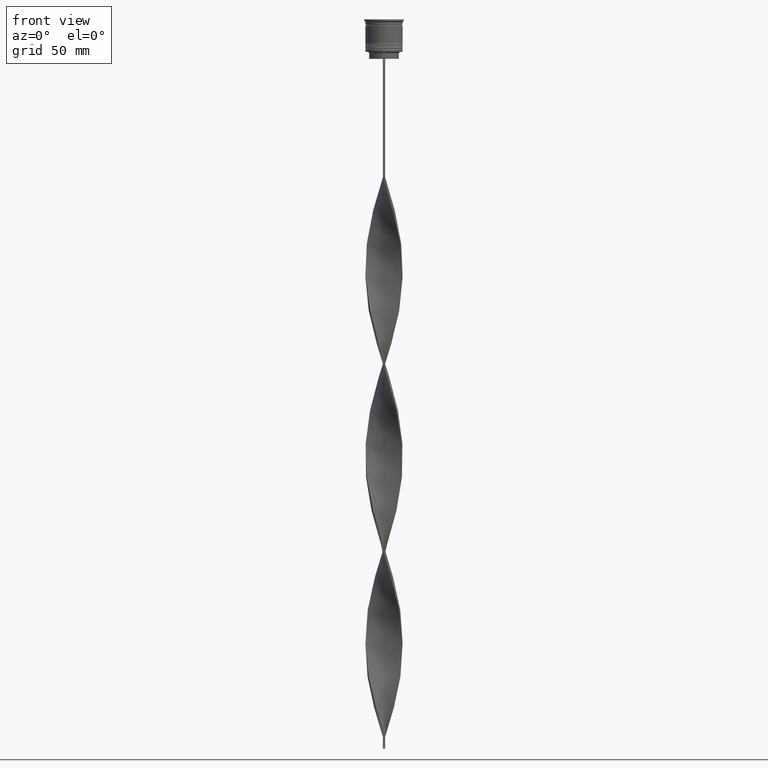
[diagram: clean part render]
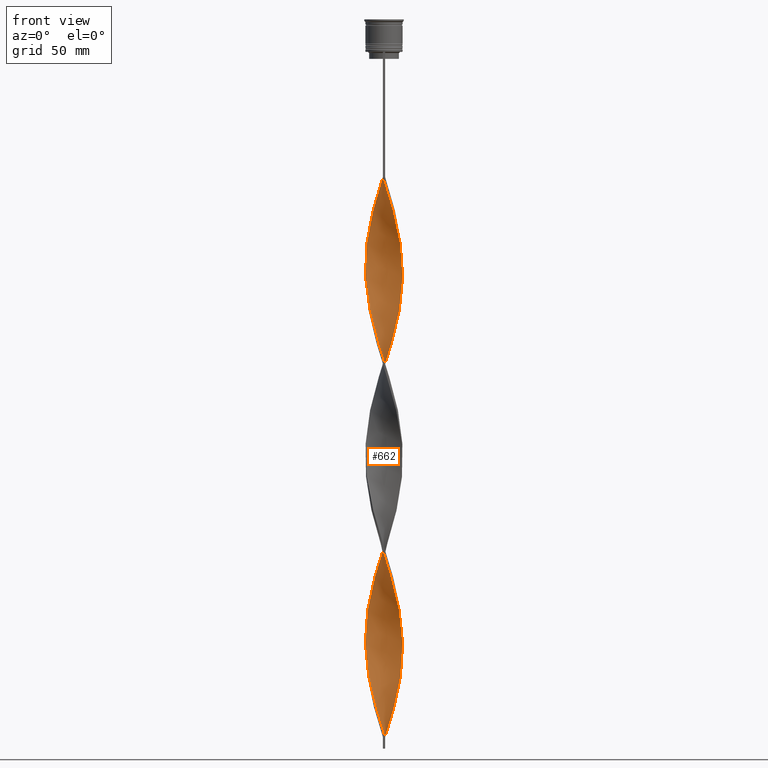
[diagram: same view with one face highlighted and labeled with its STEP entity id]
A machine part, front view. The second image highlights one B-rep face of the part: STEP entity #662.
In plain terms, the highlighted face is a freeform B-spline surface patch.
Its self-contained STEP definition (entity closure, byte-faithful):
#29 = CARTESIAN_POINT ( 'NONE',  ( -1.385649445451608841, 7.920097061150129569, -154.3583333333333201 ) ) ;
#31 = CARTESIAN_POINT ( 'NONE',  ( -7.999999999999996447, -0.4999999999999993339, -268.8333333333333712 ) ) ;
#51 = CARTESIAN_POINT ( 'NONE',  ( 6.901056943637172481, -4.077427260010559884, -96.11666666666667425 ) ) ;
#72 = CARTESIAN_POINT ( 'NONE',  ( 0.5000000000000008882, 8.000000000000003553, -309.0000000000000000 ) ) ;
#76 = CARTESIAN_POINT ( 'NONE',  ( -7.605824193947281486, -2.607565948252400290, -198.5416666666666856 ) ) ;
#90 = VERTEX_POINT ( 'NONE', #3986 ) ;
#96 = CARTESIAN_POINT ( 'NONE',  ( -7.823289492240988352, 1.745319890619417613, -184.4833333333333201 ) ) ;
#118 = CARTESIAN_POINT ( 'NONE',  ( 4.830271518912642392, -6.427786469485481824, -86.07500000000003126 ) ) ;
#119 = CARTESIAN_POINT ( 'NONE',  ( 7.920097061150129569, 1.385649445451609285, -114.1916666666666771 ) ) ;
#131 = CARTESIAN_POINT ( 'NONE',  ( 5.106790515527261931, 6.178243328853344707, -292.9333333333333371 ) ) ;
#146 = CARTESIAN_POINT ( 'NONE',  ( -1.129613654596947514, 7.960649146587686964, -230.6750000000000114 ) ) ;
#153 = CARTESIAN_POINT ( 'NONE',  ( 7.605824193947281486, 2.607565948252398069, -278.8750000000000000 ) ) ;
#156 = CARTESIAN_POINT ( 'NONE',  ( -0.4999999999999998890, -8.000000000000003553, -68.00000000000000000 ) ) ;
#160 = CARTESIAN_POINT ( 'NONE',  ( 5.106790515527261931, 6.178243328853344707, -292.9333333333333371 ) ) ;
#172 = CARTESIAN_POINT ( 'NONE',  ( 2.361026126641885714, 7.685929837894286187, -302.9750000000000227 ) ) ;
#180 = CARTESIAN_POINT ( 'NONE',  ( 6.010407640085657199, 5.303300858899108405, -288.9166666666666856 ) ) ;
#184 = CARTESIAN_POINT ( 'NONE',  ( 4.297773521152310927, 6.766028581145813625, -212.6000000000000227 ) ) ;
#193 = CARTESIAN_POINT ( 'NONE',  ( 0.5000000000000008882, 8.000000000000003553, -309.0000000000000000 ) ) ;
#196 = VERTEX_POINT ( 'NONE', #3040 ) ;
#202 = CARTESIAN_POINT ( 'NONE',  ( -7.920097061150128681, -1.385649445451604844, -194.5250000000000341 ) ) ;
#205 = CARTESIAN_POINT ( 'NONE',  ( 8.000000000000003553, -0.5000000000000004441, -268.8333333333333712 ) ) ;
#207 = CARTESIAN_POINT ( 'NONE',  ( 0.7576315500242793988, 7.979723957281213309, -224.6500000000000057 ) ) ;
#214 = CARTESIAN_POINT ( 'NONE',  ( 6.427786469485482712, 4.830271518912642392, -286.9083333333334167 ) ) ;
#220 = CARTESIAN_POINT ( 'NONE',  ( -5.303300858899108405, 6.010407640085658088, -168.4166666666666572 ) ) ;
#222 = CARTESIAN_POINT ( 'NONE',  ( 7.453943633173757632, -2.947664213147156875, -260.8000000000000114 ) ) ;
#226 = CARTESIAN_POINT ( 'NONE',  ( -2.361026126641883049, 7.685929837894279082, -234.6916666666666629 ) ) ;
#231 = CARTESIAN_POINT ( 'NONE',  ( -6.178243328853340266, -5.106790515527256602, -124.2333333333333343 ) ) ;
#239 = CARTESIAN_POINT ( 'NONE',  ( 4.830271518912643280, -6.427786469485482712, -86.07500000000003126 ) ) ;
#245 = CARTESIAN_POINT ( 'NONE',  ( 4.077427260010555443, -6.901056943637167151, -160.3833333333333258 ) ) ;
#250 = CARTESIAN_POINT ( 'NONE',  ( 7.605824193947272605, -2.607565948252400290, -178.4583333333333144 ) ) ;
#253 = CARTESIAN_POINT ( 'NONE',  ( -0.4999999999999998890, -8.000000000000003553, -68.00000000000000000 ) ) ;
#257 = CARTESIAN_POINT ( 'NONE',  ( -6.427786469485477383, 4.830271518912638840, -250.7583333333333258 ) ) ;
#260 = CARTESIAN_POINT ( 'NONE',  ( 0.7576315500242786216, -7.979723957281222191, -72.01666666666667993 ) ) ;
#270 = CARTESIAN_POINT ( 'NONE',  ( 7.920097061150122464, -1.385649445451605954, -182.4749999999999943 ) ) ;
#276 = CARTESIAN_POINT ( 'NONE',  ( 7.960649146587686964, 1.129613654596949734, -190.5083333333333826 ) ) ;
#283 = CARTESIAN_POINT ( 'NONE',  ( -4.830271518912642392, 6.427786469485483600, -166.4083333333333599 ) ) ;
#296 = CARTESIAN_POINT ( 'NONE',  ( -5.106790515527257490, 6.178243328853340266, -84.06666666666667709 ) ) ;
#301 = CARTESIAN_POINT ( 'NONE',  ( -2.607565948252396737, -7.605824193947274381, -298.9583333333334281 ) ) ;
#308 = CARTESIAN_POINT ( 'NONE',  ( -0.7576315500242785106, -7.979723957281213309, -304.9833333333333485 ) ) ;
#313 = CARTESIAN_POINT ( 'NONE',  ( 8.039350853412310371, -0.1296136545969525100, -186.4916666666667027 ) ) ;
#316 = LINE ( 'NONE', #253, #4107 ) ;
#320 = CARTESIAN_POINT ( 'NONE',  ( -2.947664213147154655, 7.453943633173751415, -236.6999999999999886 ) ) ;
#328 = CARTESIAN_POINT ( 'NONE',  ( -2.947664213147154655, 7.453943633173751415, -236.6999999999999886 ) ) ;
#336 = CARTESIAN_POINT ( 'NONE',  ( -8.039350853412308595, 0.1296136545969479303, -106.1583333333333456 ) ) ;
#338 = CARTESIAN_POINT ( 'NONE',  ( -4.297773521152310039, -6.766028581145813625, -292.9333333333333371 ) ) ;
#345 = CARTESIAN_POINT ( 'NONE',  ( -5.303300858899104853, -6.010407640085650982, -288.9166666666666856 ) ) ;
#347 =( BOUNDED_CURVE ( )  B_SPLINE_CURVE ( 2, ( #3273, #1093, #3908, #431, #2955, #1055, #3827, #1699, #1386, #3628, #640, #2051, #474, #1744, #3000, #1417, #1113, #1911, #3176, #336, #570, #4046, #1150, #2438, #2460, #1435, #552, #1780, #1816, #2768, #1520, #1836, #1494, #1476, #3099, #3411, #2748, #3391, #2417, #491, #3712, #1192, #3732, #2123, #3077, #801, #245, #3336, #836, #859, #2400, #3685, #508, #877, #3038, #2103, #2144, #270, #818, #3371, #2790, #534, #4018, #2713, #1800, #4064, #1210, #1760, #1169, #3017, #3652, #2070, #184, #3985, #3353, #1135, #2085, #3670, #207, #1456, #2730, #4000, #3059, #226, #328, #987, #2892, #1924, #1559, #3526, #1946, #613, #3501, #3165, #3753, #652, #1861, #2503, #2853, #3820, #31, #2255, #1230, #3481, #3208, #3143, #2810, #4108, #3187, #3462, #345, #2870, #676, #1274, #3781, #1880, #4085, #1603, #308, #962, #2226 ),
 .UNSPECIFIED., .F., .T. ) 
 B_SPLINE_CURVE_WITH_KNOTS ( ( 3, 2, 2, 2, 2, 2, 2, 2, 2, 2, 2, 2, 2, 2, 2, 2, 2, 2, 2, 2, 2, 2, 2, 2, 2, 2, 2, 2, 2, 2, 2, 2, 2, 2, 2, 2, 2, 2, 2, 2, 2, 2, 2, 2, 2, 2, 2, 2, 2, 2, 2, 2, 2, 2, 2, 2, 2, 2, 2, 2, 3 ),
 ( 0.000000000000000000, 0.01250000000000000243, 0.02500000000000000486, 0.03749999999999999861, 0.05000000000000000971, 0.06250000000000000000, 0.07499999999999999722, 0.08749999999999998057, 0.1000000000000000194, 0.1125000000000000028, 0.1250000000000000000, 0.1375000000000000111, 0.1499999999999999944, 0.1625000000000000056, 0.1749999999999999611, 0.1875000000000000000, 0.2000000000000000389, 0.2124999999999999944, 0.2250000000000000056, 0.2374999999999999611, 0.2500000000000000000, 0.2625000000000000111, 0.2750000000000000222, 0.2874999999999999778, 0.2999999999999999889, 0.3125000000000000000, 0.3250000000000000111, 0.3375000000000000777, 0.3499999999999999223, 0.3624999999999999889, 0.3750000000000000000, 0.3875000000000000111, 0.4000000000000000777, 0.4124999999999999223, 0.4249999999999999889, 0.4375000000000000000, 0.4500000000000000111, 0.4625000000000000777, 0.4749999999999999223, 0.4874999999999999889, 0.5000000000000000000, 0.5124999999999999556, 0.5250000000000000222, 0.5374999999999999778, 0.5500000000000000444, 0.5625000000000000000, 0.5749999999999999556, 0.5875000000000000222, 0.5999999999999999778, 0.6125000000000000444, 0.6250000000000000000, 0.6374999999999999556, 0.6500000000000000222, 0.6624999999999999778, 0.6750000000000001554, 0.6875000000000000000, 0.6999999999999998446, 0.7125000000000000222, 0.7249999999999999778, 0.7375000000000001554, 0.7500000000000000000 ),
 .UNSPECIFIED. ) 
 CURVE ( )  GEOMETRIC_REPRESENTATION_ITEM ( )  RATIONAL_B_SPLINE_CURVE ( ( 1.000000000000000000, 0.9969173337331279638, 1.000000000000000000, 0.9969173337331279638, 1.000000000000000000, 0.9969173337331279638, 1.000000000000000000, 0.9969173337331279638, 1.000000000000000000, 0.9969173337331279638, 1.000000000000000000, 0.9969173337331279638, 1.000000000000000000, 0.9969173337331279638, 1.000000000000000000, 0.9969173337331279638, 1.000000000000000000, 0.9969173337331279638, 1.000000000000000000, 0.9969173337331279638, 1.000000000000000000, 0.9969173337331279638, 1.000000000000000000, 0.9969173337331279638, 1.000000000000000000, 0.9969173337331279638, 1.000000000000000000, 0.9969173337331279638, 1.000000000000000000, 0.9969173337331279638, 1.000000000000000000, 0.9969173337331279638, 1.000000000000000000, 0.9969173337331279638, 1.000000000000000000, 0.9969173337331279638, 1.000000000000000000, 0.9969173337331279638, 1.000000000000000000, 0.9969173337331279638, 1.000000000000000000, 0.9969173337331279638, 1.000000000000000000, 0.9969173337331279638, 1.000000000000000000, 0.9969173337331279638, 1.000000000000000000, 0.9969173337331279638, 1.000000000000000000, 0.9969173337331279638, 1.000000000000000000, 0.9969173337331279638, 1.000000000000000000, 0.9969173337331279638, 1.000000000000000000, 0.9969173337331279638, 1.000000000000000000, 0.9969173337331279638, 1.000000000000000000, 0.9969173337331279638, 1.000000000000000000, 0.9969173337331279638, 1.000000000000000000, 0.9969173337331279638, 1.000000000000000000, 0.9969173337331279638, 1.000000000000000000, 0.9969173337331279638, 1.000000000000000000, 0.9969173337331279638, 1.000000000000000000, 0.9969173337331279638, 1.000000000000000000, 0.9969173337331279638, 1.000000000000000000, 0.9969173337331279638, 1.000000000000000000, 0.9969173337331279638, 1.000000000000000000, 0.9969173337331279638, 1.000000000000000000, 0.9969173337331279638, 1.000000000000000000, 0.9969173337331279638, 1.000000000000000000, 0.9969173337331279638, 1.000000000000000000, 0.9969173337331279638, 1.000000000000000000, 0.9969173337331279638, 1.000000000000000000, 0.9969173337331279638, 1.000000000000000000, 0.9969173337331279638, 1.000000000000000000, 0.9969173337331279638, 1.000000000000000000, 0.9969173337331279638, 1.000000000000000000, 0.9969173337331279638, 1.000000000000000000, 0.9969173337331279638, 1.000000000000000000, 0.9969173337331279638, 1.000000000000000000, 0.9969173337331279638, 1.000000000000000000, 0.9969173337331279638, 1.000000000000000000, 0.9969173337331279638, 1.000000000000000000, 0.9969173337331279638, 1.000000000000000000, 0.9969173337331279638, 1.000000000000000000, 0.9969173337331279638, 1.000000000000000000, 0.9969173337331279638, 1.000000000000000000, 0.9969173337331279638, 1.000000000000000000 ) ) 
 REPRESENTATION_ITEM ( '' )  );
#350 = ORIENTED_EDGE ( 'NONE', *, *, #3998, .T. ) ;
#363 = CARTESIAN_POINT ( 'NONE',  ( -0.1296136545969470699, 8.039350853412313924, -150.3416666666666401 ) ) ;
#383 = CARTESIAN_POINT ( 'NONE',  ( -8.039350853412315701, -0.1296136545969501230, -190.5083333333333542 ) ) ;
#408 = CARTESIAN_POINT ( 'NONE',  ( -6.178243328853344707, 5.106790515527261931, -172.4333333333333371 ) ) ;
#427 = CARTESIAN_POINT ( 'NONE',  ( 0.5000000000000008882, 8.000000000000003553, -148.3333333333333428 ) ) ;
#431 = CARTESIAN_POINT ( 'NONE',  ( -2.361026126641883049, 7.685929837894279082, -74.02500000000000568 ) ) ;
#437 = CARTESIAN_POINT ( 'NONE',  ( 7.104270692806158749, 3.765275523391986123, -282.8916666666667084 ) ) ;
#444 = CARTESIAN_POINT ( 'NONE',  ( 7.979723957281222191, 0.7576315500242781775, -272.8500000000000227 ) ) ;
#457 = CARTESIAN_POINT ( 'NONE',  ( -5.106790515527262819, -6.178243328853344707, -212.6000000000000227 ) ) ;
#469 = CARTESIAN_POINT ( 'NONE',  ( -2.361026126641883049, -7.685929837894287076, -222.6416666666667084 ) ) ;
#474 = CARTESIAN_POINT ( 'NONE',  ( -6.766028581145814513, 4.297773521152309151, -92.09999999999999432 ) ) ;
#478 = CARTESIAN_POINT ( 'NONE',  ( 3.534302299652431145, 7.221957428453231742, -298.9583333333334281 ) ) ;
#486 = CARTESIAN_POINT ( 'NONE',  ( 1.129613654596949068, 7.960649146587693181, -306.9916666666667879 ) ) ;
#491 = CARTESIAN_POINT ( 'NONE',  ( -0.1296136545969484577, -8.039350853412308595, -146.3250000000000171 ) ) ;
#497 = CARTESIAN_POINT ( 'NONE',  ( 6.178243328853345595, -5.106790515527261043, -252.7666666666667084 ) ) ;
#502 = CARTESIAN_POINT ( 'NONE',  ( -5.776330198885575307, 5.593028810685836127, -170.4250000000000398 ) ) ;
#508 = CARTESIAN_POINT ( 'NONE',  ( 6.766028581145813625, -4.297773521152310039, -172.4333333333333371 ) ) ;
#509 = CARTESIAN_POINT ( 'NONE',  ( 3.765275523391981682, 7.104270692806153420, -214.6083333333333769 ) ) ;
#519 = CARTESIAN_POINT ( 'NONE',  ( 4.297773521152313592, -6.766028581145818954, -244.7333333333333201 ) ) ;
#527 = CARTESIAN_POINT ( 'NONE',  ( 6.010407640085657199, 5.303300858899108405, -128.2500000000000000 ) ) ;
#530 = CARTESIAN_POINT ( 'NONE',  ( 2.947664213147157763, 7.453943633173757632, -300.9666666666666401 ) ) ;
#534 = CARTESIAN_POINT ( 'NONE',  ( 7.960649146587686964, 1.129613654596949512, -190.5083333333333542 ) ) ;
#541 = CARTESIAN_POINT ( 'NONE',  ( -6.010407640085651870, 5.303300858899104853, -88.08333333333334281 ) ) ;
#552 = CARTESIAN_POINT ( 'NONE',  ( -6.901056943637167151, -4.077427260010556331, -120.2166666666666686 ) ) ;
#557 = CARTESIAN_POINT ( 'NONE',  ( 4.077427260010555443, -6.901056943637167151, -160.3833333333333258 ) ) ;
#564 = CARTESIAN_POINT ( 'NONE',  ( 7.104270692806158749, 3.765275523391986123, -122.2250000000000085 ) ) ;
#570 = CARTESIAN_POINT ( 'NONE',  ( -7.999999999999996447, -0.4999999999999993339, -108.1666666666666714 ) ) ;
#576 = CARTESIAN_POINT ( 'NONE',  ( 2.361026126641882161, -7.685929837894279970, -154.3583333333332916 ) ) ;
#583 = CARTESIAN_POINT ( 'NONE',  ( -7.960649146587688740, -1.129613654596947070, -270.8416666666666401 ) ) ;
#586 = CARTESIAN_POINT ( 'NONE',  ( 7.762960627548706860, 1.996607696852002789, -116.2000000000000028 ) ) ;
#599 = CARTESIAN_POINT ( 'NONE',  ( -7.605824193947274381, 2.607565948252396293, -98.12500000000002842 ) ) ;
#613 = CARTESIAN_POINT ( 'NONE',  ( -6.427786469485477383, 4.830271518912637951, -250.7583333333332973 ) ) ;
#618 = CARTESIAN_POINT ( 'NONE',  ( -4.830271518912639728, -6.427786469485477383, -130.2583333333333826 ) ) ;
#633 =( BOUNDED_CURVE ( )  B_SPLINE_CURVE ( 2, ( #156, #1410, #2682, #3920, #3123, #3734, #1212, #2812, #879, #118, #1378, #3291, #1315, #3840, #51, #1670, #1291, #755, #2005, #2275, #1073, #3606, #3564, #119, #2024, #1602, #1048, #695, #2646, #2338, #3867, #2623, #2294, #2869, #3903, #986, #1622, #1985, #2932, #3269, #427, #363, #2606, #29, #3545, #1945, #3224, #2316, #2587, #3587, #1694, #1379, #408, #2889, #1009, #3207, #735, #1963, #96, #1356, #710, #383, #1648, #2914, #2561, #76, #2253, #1337, #3886, #3525, #1029, #3249, #2951, #675, #3925, #3999, #2413, #469, #2067, #2044, #2974, #3959, #3313, #2098, #831, #3332, #3350, #3367, #2355, #1455, #2687, #2728, #3682, #2432, #2743, #3013, #222, #774, #2708, #3667, #205, #1797, #444, #3982, #1414, #1738, #1756, #2665, #3942, #2994, #180, #815, #160, #2081, #1431, #799, #530, #1149, #3056, #486, #3623 ),
 .UNSPECIFIED., .F., .T. ) 
 B_SPLINE_CURVE_WITH_KNOTS ( ( 3, 2, 2, 2, 2, 2, 2, 2, 2, 2, 2, 2, 2, 2, 2, 2, 2, 2, 2, 2, 2, 2, 2, 2, 2, 2, 2, 2, 2, 2, 2, 2, 2, 2, 2, 2, 2, 2, 2, 2, 2, 2, 2, 2, 2, 2, 2, 2, 2, 2, 2, 2, 2, 2, 2, 2, 2, 2, 2, 2, 3 ),
 ( 0.000000000000000000, 0.01250000000000000243, 0.02500000000000000486, 0.03749999999999999861, 0.05000000000000000971, 0.06250000000000000000, 0.07499999999999999722, 0.08749999999999998057, 0.1000000000000000194, 0.1125000000000000028, 0.1250000000000000000, 0.1375000000000000111, 0.1499999999999999944, 0.1625000000000000056, 0.1749999999999999611, 0.1875000000000000000, 0.2000000000000000389, 0.2124999999999999944, 0.2250000000000000056, 0.2374999999999999611, 0.2500000000000000000, 0.2625000000000000111, 0.2750000000000000222, 0.2874999999999999778, 0.2999999999999999889, 0.3125000000000000000, 0.3250000000000000111, 0.3375000000000000777, 0.3499999999999999223, 0.3624999999999999889, 0.3750000000000000000, 0.3875000000000000111, 0.4000000000000000777, 0.4124999999999999223, 0.4249999999999999889, 0.4375000000000000000, 0.4500000000000000111, 0.4625000000000000777, 0.4749999999999999223, 0.4874999999999999889, 0.5000000000000000000, 0.5124999999999999556, 0.5250000000000000222, 0.5374999999999999778, 0.5500000000000000444, 0.5625000000000000000, 0.5749999999999999556, 0.5875000000000000222, 0.5999999999999999778, 0.6125000000000000444, 0.6250000000000000000, 0.6374999999999999556, 0.6500000000000000222, 0.6624999999999999778, 0.6750000000000001554, 0.6875000000000000000, 0.6999999999999998446, 0.7125000000000000222, 0.7249999999999999778, 0.7375000000000001554, 0.7500000000000000000 ),
 .UNSPECIFIED. ) 
 CURVE ( )  GEOMETRIC_REPRESENTATION_ITEM ( )  RATIONAL_B_SPLINE_CURVE ( ( 1.000000000000000000, 0.9969173337331279638, 1.000000000000000000, 0.9969173337331279638, 1.000000000000000000, 0.9969173337331279638, 1.000000000000000000, 0.9969173337331279638, 1.000000000000000000, 0.9969173337331279638, 1.000000000000000000, 0.9969173337331279638, 1.000000000000000000, 0.9969173337331279638, 1.000000000000000000, 0.9969173337331279638, 1.000000000000000000, 0.9969173337331279638, 1.000000000000000000, 0.9969173337331279638, 1.000000000000000000, 0.9969173337331279638, 1.000000000000000000, 0.9969173337331279638, 1.000000000000000000, 0.9969173337331279638, 1.000000000000000000, 0.9969173337331279638, 1.000000000000000000, 0.9969173337331279638, 1.000000000000000000, 0.9969173337331279638, 1.000000000000000000, 0.9969173337331279638, 1.000000000000000000, 0.9969173337331279638, 1.000000000000000000, 0.9969173337331279638, 1.000000000000000000, 0.9969173337331279638, 1.000000000000000000, 0.9969173337331279638, 1.000000000000000000, 0.9969173337331279638, 1.000000000000000000, 0.9969173337331279638, 1.000000000000000000, 0.9969173337331279638, 1.000000000000000000, 0.9969173337331279638, 1.000000000000000000, 0.9969173337331279638, 1.000000000000000000, 0.9969173337331279638, 1.000000000000000000, 0.9969173337331279638, 1.000000000000000000, 0.9969173337331279638, 1.000000000000000000, 0.9969173337331279638, 1.000000000000000000, 0.9969173337331279638, 1.000000000000000000, 0.9969173337331279638, 1.000000000000000000, 0.9969173337331279638, 1.000000000000000000, 0.9969173337331279638, 1.000000000000000000, 0.9969173337331279638, 1.000000000000000000, 0.9969173337331279638, 1.000000000000000000, 0.9969173337331279638, 1.000000000000000000, 0.9969173337331279638, 1.000000000000000000, 0.9969173337331279638, 1.000000000000000000, 0.9969173337331279638, 1.000000000000000000, 0.9969173337331279638, 1.000000000000000000, 0.9969173337331279638, 1.000000000000000000, 0.9969173337331279638, 1.000000000000000000, 0.9969173337331279638, 1.000000000000000000, 0.9969173337331279638, 1.000000000000000000, 0.9969173337331279638, 1.000000000000000000, 0.9969173337331279638, 1.000000000000000000, 0.9969173337331279638, 1.000000000000000000, 0.9969173337331279638, 1.000000000000000000, 0.9969173337331279638, 1.000000000000000000, 0.9969173337331279638, 1.000000000000000000, 0.9969173337331279638, 1.000000000000000000, 0.9969173337331279638, 1.000000000000000000, 0.9969173337331279638, 1.000000000000000000, 0.9969173337331279638, 1.000000000000000000, 0.9969173337331279638, 1.000000000000000000, 0.9969173337331279638, 1.000000000000000000, 0.9969173337331279638, 1.000000000000000000, 0.9969173337331279638, 1.000000000000000000, 0.9969173337331279638, 1.000000000000000000 ) ) 
 REPRESENTATION_ITEM ( '' )  );
#640 = CARTESIAN_POINT ( 'NONE',  ( -6.010407640085651870, 5.303300858899104853, -88.08333333333334281 ) ) ;
#652 = CARTESIAN_POINT ( 'NONE',  ( -7.605824193947275269, 2.607565948252396293, -258.7916666666666288 ) ) ;
#662 = ADVANCED_FACE ( 'NONE', ( #3605 ), #2489, .T. ) ;
#675 = CARTESIAN_POINT ( 'NONE',  ( -4.620552220368688623, -6.580156458821115883, -214.6083333333333769 ) ) ;
#676 = CARTESIAN_POINT ( 'NONE',  ( -4.297773521152310039, -6.766028581145813625, -292.9333333333333371 ) ) ;
#695 = CARTESIAN_POINT ( 'NONE',  ( 7.104270692806157861, 3.765275523391985679, -122.2250000000000085 ) ) ;
#710 = CARTESIAN_POINT ( 'NONE',  ( -8.000000000000003553, 0.5000000000000014433, -188.5000000000000000 ) ) ;
#735 = CARTESIAN_POINT ( 'NONE',  ( -7.453943633173757632, 2.947664213147157763, -180.4666666666666686 ) ) ;
#755 = CARTESIAN_POINT ( 'NONE',  ( 7.685929837894286187, -2.361026126641885270, -102.1416666666666799 ) ) ;
#767 = CARTESIAN_POINT ( 'NONE',  ( 7.762960627548706860, 1.996607696852002789, -276.8666666666667311 ) ) ;
#774 = CARTESIAN_POINT ( 'NONE',  ( 7.685929837894286187, -2.361026126641885270, -262.8083333333333371 ) ) ;
#780 = CARTESIAN_POINT ( 'NONE',  ( 3.186420735822190320, 7.355047443376712124, -216.6166666666666742 ) ) ;
#787 = CARTESIAN_POINT ( 'NONE',  ( 6.010407640085657199, 5.303300858899108405, -288.9166666666666856 ) ) ;
#799 = CARTESIAN_POINT ( 'NONE',  ( 3.534302299652431145, 7.221957428453231742, -298.9583333333333712 ) ) ;
#801 = CARTESIAN_POINT ( 'NONE',  ( 3.534302299652426704, -7.221957428453226413, -158.3750000000000284 ) ) ;
#806 = CARTESIAN_POINT ( 'NONE',  ( -4.620552220368688623, -6.580156458821115883, -214.6083333333333769 ) ) ;
#813 = CARTESIAN_POINT ( 'NONE',  ( -8.039350853412315701, -0.1296136545969501508, -190.5083333333333826 ) ) ;
#815 = CARTESIAN_POINT ( 'NONE',  ( 5.593028810685833463, 5.776330198885578859, -290.9250000000000682 ) ) ;
#818 = CARTESIAN_POINT ( 'NONE',  ( 7.979723957281213309, -0.7576315500242789547, -184.4833333333333201 ) ) ;
#819 = CARTESIAN_POINT ( 'NONE',  ( 2.607565948252400734, 7.605824193947272605, -218.6250000000000568 ) ) ;
#823 = CARTESIAN_POINT ( 'NONE',  ( -3.534302299652427592, 7.221957428453224637, -78.04166666666667140 ) ) ;
#829 = CARTESIAN_POINT ( 'NONE',  ( 2.361026126641885714, 7.685929837894286187, -142.3083333333333371 ) ) ;
#831 = CARTESIAN_POINT ( 'NONE',  ( 1.996607696852003233, -7.762960627548705084, -236.6999999999999886 ) ) ;
#836 = CARTESIAN_POINT ( 'NONE',  ( 5.106790515527256602, -6.178243328853340266, -164.3999999999999773 ) ) ;
#844 = CARTESIAN_POINT ( 'NONE',  ( 7.920097061150128681, 1.385649445451609285, -274.8583333333332916 ) ) ;
#852 = CARTESIAN_POINT ( 'NONE',  ( 1.745319890619417169, 7.823289492240988352, -144.3166666666666629 ) ) ;
#859 = CARTESIAN_POINT ( 'NONE',  ( 5.593028810685827246, -5.776330198885574418, -166.4083333333333599 ) ) ;
#866 = CARTESIAN_POINT ( 'NONE',  ( -7.960649146587688740, -1.129613654596947070, -110.1749999999999972 ) ) ;
#872 = CARTESIAN_POINT ( 'NONE',  ( -7.979723957281215085, 0.7576315500242779555, -264.8166666666667197 ) ) ;
#873 = CARTESIAN_POINT ( 'NONE',  ( 5.303300858899110182, -6.010407640085657199, -88.08333333333334281 ) ) ;
#877 = CARTESIAN_POINT ( 'NONE',  ( 7.104270692806153420, -3.765275523391980794, -174.4416666666666629 ) ) ;
#879 = CARTESIAN_POINT ( 'NONE',  ( 4.297773521152313592, -6.766028581145818954, -84.06666666666667709 ) ) ;
#883 = CARTESIAN_POINT ( 'NONE',  ( 7.762960627548698866, -1.996607696852002345, -180.4666666666666686 ) ) ;
#885 = DIRECTION ( 'NONE',  ( 0.000000000000000000, 1.000000000000000000, 0.000000000000000000 ) ) ;
#890 = CARTESIAN_POINT ( 'NONE',  ( -7.605824193947274381, 2.607565948252396293, -258.7916666666666288 ) ) ;
#892 = CARTESIAN_POINT ( 'NONE',  ( 3.186420735822192096, -7.355047443376720118, -80.05000000000001137 ) ) ;
#903 = CARTESIAN_POINT ( 'NONE',  ( -6.580156458821110554, -4.620552220368685958, -122.2250000000000085 ) ) ;
#911 = CARTESIAN_POINT ( 'NONE',  ( -0.1296136545969484577, -8.039350853412310371, -306.9916666666667311 ) ) ;
#930 = CARTESIAN_POINT ( 'NONE',  ( -7.762960627548698866, 1.996607696852001457, -100.1333333333333400 ) ) ;
#935 = CARTESIAN_POINT ( 'NONE',  ( -4.077427260010556331, 6.901056943637167151, -240.7166666666666686 ) ) ;
#949 = CARTESIAN_POINT ( 'NONE',  ( -7.221957428453224637, -3.534302299652427148, -118.2083333333333144 ) ) ;
#955 = CARTESIAN_POINT ( 'NONE',  ( -7.104270692806151644, 3.765275523391983459, -254.7749999999999488 ) ) ;
#962 = CARTESIAN_POINT ( 'NONE',  ( -0.1296136545969484577, -8.039350853412308595, -306.9916666666667879 ) ) ;
#986 = CARTESIAN_POINT ( 'NONE',  ( 3.534302299652431145, 7.221957428453231742, -138.2916666666667140 ) ) ;
#987 = CARTESIAN_POINT ( 'NONE',  ( -3.534302299652427592, 7.221957428453224637, -238.7083333333333144 ) ) ;
#1009 = CARTESIAN_POINT ( 'NONE',  ( -6.901056943637172481, 4.077427260010560772, -176.4499999999999886 ) ) ;
#1029 = CARTESIAN_POINT ( 'NONE',  ( -6.010407640085658088, -5.303300858899107517, -208.5833333333333428 ) ) ;
#1048 = CARTESIAN_POINT ( 'NONE',  ( 7.355047443376720118, 3.186420735822192096, -120.2166666666666686 ) ) ;
#1055 = CARTESIAN_POINT ( 'NONE',  ( -3.534302299652427592, 7.221957428453224637, -78.04166666666667140 ) ) ;
#1073 = CARTESIAN_POINT ( 'NONE',  ( 8.000000000000003553, -0.5000000000000004441, -108.1666666666666714 ) ) ;
#1085 = CARTESIAN_POINT ( 'NONE',  ( 1.385649445451609729, -7.920097061150128681, -234.6916666666666629 ) ) ;
#1093 = CARTESIAN_POINT ( 'NONE',  ( -1.129613654596947514, 7.960649146587686964, -70.00833333333335418 ) ) ;
#1099 = CARTESIAN_POINT ( 'NONE',  ( 6.901056943637172481, -4.077427260010559884, -256.7833333333333599 ) ) ;
#1113 = CARTESIAN_POINT ( 'NONE',  ( -7.762960627548698866, 1.996607696852001457, -100.1333333333333400 ) ) ;
#1121 = CARTESIAN_POINT ( 'NONE',  ( -6.766028581145818954, -4.297773521152311815, -204.5666666666666629 ) ) ;
#1131 = CARTESIAN_POINT ( 'NONE',  ( -7.823289492240988352, 1.745319890619417613, -184.4833333333333201 ) ) ;
#1135 = CARTESIAN_POINT ( 'NONE',  ( 2.607565948252400734, 7.605824193947273493, -218.6250000000000284 ) ) ;
#1136 = CARTESIAN_POINT ( 'NONE',  ( 0.7576315500242793988, 7.979723957281213309, -224.6500000000000057 ) ) ;
#1140 = CARTESIAN_POINT ( 'NONE',  ( -2.361026126641883049, 7.685929837894279082, -74.02500000000000568 ) ) ;
#1147 = CARTESIAN_POINT ( 'NONE',  ( -1.996607696852002345, 7.762960627548706860, -156.3666666666666458 ) ) ;
#1149 = CARTESIAN_POINT ( 'NONE',  ( 2.361026126641885714, 7.685929837894286187, -302.9750000000000227 ) ) ;
#1150 = CARTESIAN_POINT ( 'NONE',  ( -7.823289492240983023, -1.745319890619414727, -112.1833333333333229 ) ) ;
#1155 = CARTESIAN_POINT ( 'NONE',  ( 7.685929837894286187, -2.361026126641885270, -262.8083333333332803 ) ) ;
#1161 = CARTESIAN_POINT ( 'NONE',  ( 7.605824193947281486, 2.607565948252398069, -118.2083333333333144 ) ) ;
#1169 = CARTESIAN_POINT ( 'NONE',  ( 6.178243328853342042, 5.106790515527255714, -204.5666666666666629 ) ) ;
#1176 = CARTESIAN_POINT ( 'NONE',  ( -0.1296136545969484577, -8.039350853412310371, -146.3250000000000171 ) ) ;
#1183 = CARTESIAN_POINT ( 'NONE',  ( 0.4999999999999989453, -7.999999999999996447, -309.0000000000000000 ) ) ;
#1184 = CARTESIAN_POINT ( 'NONE',  ( -6.901056943637172481, 4.077427260010560772, -176.4499999999999886 ) ) ;
#1192 = CARTESIAN_POINT ( 'NONE',  ( 1.129613654596946626, -7.960649146587688740, -150.3416666666666401 ) ) ;
#1198 = CARTESIAN_POINT ( 'NONE',  ( -8.039350853412310371, 0.1296136545969479026, -106.1583333333333456 ) ) ;
#1205 = CARTESIAN_POINT ( 'NONE',  ( -1.385649445451609063, 7.920097061150128681, -154.3583333333332916 ) ) ;
#1210 = CARTESIAN_POINT ( 'NONE',  ( 6.901056943637168040, 4.077427260010555443, -200.5500000000000114 ) ) ;
#1212 = CARTESIAN_POINT ( 'NONE',  ( 3.186420735822192096, -7.355047443376720118, -80.05000000000001137 ) ) ;
#1217 = CARTESIAN_POINT ( 'NONE',  ( 6.580156458821112331, 4.620552220368682406, -202.5583333333333371 ) ) ;
#1230 = CARTESIAN_POINT ( 'NONE',  ( -7.823289492240983023, -1.745319890619414727, -272.8500000000000227 ) ) ;
#1236 = CARTESIAN_POINT ( 'NONE',  ( -1.996607696852002345, -7.762960627548698866, -140.3000000000000114 ) ) ;
#1237 = ORIENTED_EDGE ( 'NONE', *, *, #2397, .F. ) ;
#1260 = CARTESIAN_POINT ( 'NONE',  ( 1.745319890619414060, -7.823289492240984799, -152.3499999999999943 ) ) ;
#1266 = CARTESIAN_POINT ( 'NONE',  ( -7.762960627548698866, 1.996607696852001457, -260.8000000000000114 ) ) ;
#1274 = CARTESIAN_POINT ( 'NONE',  ( -3.765275523391983015, -7.104270692806150755, -294.9416666666667197 ) ) ;
#1291 = CARTESIAN_POINT ( 'NONE',  ( 7.453943633173757632, -2.947664213147156875, -100.1333333333333400 ) ) ;
#1315 = CARTESIAN_POINT ( 'NONE',  ( 6.178243328853345595, -5.106790515527261043, -92.09999999999999432 ) ) ;
#1337 = CARTESIAN_POINT ( 'NONE',  ( -7.104270692806159637, -3.765275523391982126, -202.5583333333333371 ) ) ;
#1356 = CARTESIAN_POINT ( 'NONE',  ( -7.960649146587693181, 1.129613654596953065, -186.4916666666667027 ) ) ;
#1362 = ORIENTED_EDGE ( 'NONE', *, *, #2516, .T. ) ;
#1378 = CARTESIAN_POINT ( 'NONE',  ( 5.303300858899110182, -6.010407640085657199, -88.08333333333334281 ) ) ;
#1379 = CARTESIAN_POINT ( 'NONE',  ( -5.776330198885575307, 5.593028810685836127, -170.4250000000000398 ) ) ;
#1386 = CARTESIAN_POINT ( 'NONE',  ( -5.106790515527257490, 6.178243328853340266, -84.06666666666667709 ) ) ;
#1392 = CARTESIAN_POINT ( 'NONE',  ( 3.765275523391986123, -7.104270692806158749, -242.7250000000000227 ) ) ;
#1407 = CARTESIAN_POINT ( 'NONE',  ( 6.766028581145818954, 4.297773521152312703, -284.9000000000000341 ) ) ;
#1410 = CARTESIAN_POINT ( 'NONE',  ( 0.1296136545969480414, -8.039350853412315701, -70.00833333333335418 ) ) ;
#1414 = CARTESIAN_POINT ( 'NONE',  ( 7.762960627548706860, 1.996607696852002789, -276.8666666666667311 ) ) ;
#1417 = CARTESIAN_POINT ( 'NONE',  ( -7.605824193947275269, 2.607565948252396293, -98.12500000000001421 ) ) ;
#1422 = CARTESIAN_POINT ( 'NONE',  ( 1.745319890619417169, 7.823289492240988352, -304.9833333333333485 ) ) ;
#1431 = CARTESIAN_POINT ( 'NONE',  ( 4.077427260010560772, 6.901056943637172481, -296.9499999999999886 ) ) ;
#1435 = CARTESIAN_POINT ( 'NONE',  ( -7.221957428453224637, -3.534302299652427148, -118.2083333333333286 ) ) ;
#1445 = CARTESIAN_POINT ( 'NONE',  ( -7.104270692806160525, -3.765275523391982571, -202.5583333333333371 ) ) ;
#1453 = CARTESIAN_POINT ( 'NONE',  ( 3.765275523391986123, -7.104270692806158749, -82.05833333333336554 ) ) ;
#1455 = CARTESIAN_POINT ( 'NONE',  ( 4.830271518912642392, -6.427786469485481824, -246.7416666666667027 ) ) ;
#1456 = CARTESIAN_POINT ( 'NONE',  ( 0.1296136545969529541, 8.039350853412308595, -226.6583333333333883 ) ) ;
#1461 = CARTESIAN_POINT ( 'NONE',  ( -7.762960627548706860, -1.996607696852001901, -196.5333333333333314 ) ) ;
#1468 = CARTESIAN_POINT ( 'NONE',  ( 7.920097061150128681, 1.385649445451609285, -114.1916666666666771 ) ) ;
#1476 = CARTESIAN_POINT ( 'NONE',  ( -3.765275523391983015, -7.104270692806150755, -134.2750000000000341 ) ) ;
#1481 = CARTESIAN_POINT ( 'NONE',  ( -7.979723957281215085, 0.7576315500242779555, -104.1500000000000057 ) ) ;
#1487 = CARTESIAN_POINT ( 'NONE',  ( 0.5000000000000008882, 8.000000000000003553, -148.3333333333333428 ) ) ;
#1494 = CARTESIAN_POINT ( 'NONE',  ( -4.297773521152310039, -6.766028581145813625, -132.2666666666666799 ) ) ;
#1502 = CARTESIAN_POINT ( 'NONE',  ( -4.620552220368685958, 6.580156458821110554, -82.05833333333336554 ) ) ;
#1511 = CARTESIAN_POINT ( 'NONE',  ( 7.221957428453231742, -3.534302299652430701, -98.12500000000002842 ) ) ;
#1520 = CARTESIAN_POINT ( 'NONE',  ( -5.303300858899104853, -6.010407640085650982, -128.2500000000000000 ) ) ;
#1526 = CARTESIAN_POINT ( 'NONE',  ( 7.453943633173752303, 2.947664213147153767, -196.5333333333333314 ) ) ;
#1532 = CARTESIAN_POINT ( 'NONE',  ( -7.999999999999996447, -0.4999999999999993339, -268.8333333333333712 ) ) ;
#1534 = CARTESIAN_POINT ( 'NONE',  ( -3.186420735822190764, 7.355047443376720118, -160.3833333333333258 ) ) ;
#1546 = CARTESIAN_POINT ( 'NONE',  ( -6.427786469485477383, 4.830271518912638840, -90.09166666666666856 ) ) ;
#1559 = CARTESIAN_POINT ( 'NONE',  ( -5.106790515527257490, 6.178243328853340266, -244.7333333333333201 ) ) ;
#1565 = CARTESIAN_POINT ( 'NONE',  ( -7.999999999999996447, -0.4999999999999993339, -108.1666666666666714 ) ) ;
#1567 = EDGE_LOOP ( 'NONE', ( #1362, #350, #2865, #1237 ) ) ;
#1573 = CARTESIAN_POINT ( 'NONE',  ( -3.534302299652427592, 7.221957428453224637, -238.7083333333333144 ) ) ;
#1602 = CARTESIAN_POINT ( 'NONE',  ( 7.605824193947282374, 2.607565948252398069, -118.2083333333333286 ) ) ;
#1603 = CARTESIAN_POINT ( 'NONE',  ( -1.385649445451609063, -7.920097061150122464, -302.9750000000000227 ) ) ;
#1622 = CARTESIAN_POINT ( 'NONE',  ( 2.947664213147157763, 7.453943633173757632, -140.3000000000000114 ) ) ;
#1648 = CARTESIAN_POINT ( 'NONE',  ( -7.979723957281220414, -0.7576315500242771783, -192.5166666666666799 ) ) ;
#1670 = CARTESIAN_POINT ( 'NONE',  ( 7.221957428453231742, -3.534302299652430701, -98.12500000000001421 ) ) ;
#1694 = CARTESIAN_POINT ( 'NONE',  ( -5.303300858899108405, 6.010407640085658088, -168.4166666666666572 ) ) ;
#1699 = CARTESIAN_POINT ( 'NONE',  ( -4.620552220368685958, 6.580156458821110554, -82.05833333333335133 ) ) ;
#1707 = CARTESIAN_POINT ( 'NONE',  ( -6.427786469485482712, -4.830271518912645057, -206.5750000000000171 ) ) ;
#1738 = CARTESIAN_POINT ( 'NONE',  ( 7.605824193947282374, 2.607565948252398069, -278.8750000000000000 ) ) ;
#1744 = CARTESIAN_POINT ( 'NONE',  ( -7.104270692806150755, 3.765275523391983015, -94.10833333333334849 ) ) ;
#1749 = CARTESIAN_POINT ( 'NONE',  ( 7.979723957281222191, 0.7576315500242781775, -272.8500000000000227 ) ) ;
#1756 = CARTESIAN_POINT ( 'NONE',  ( 7.355047443376720118, 3.186420735822192096, -280.8833333333333826 ) ) ;
#1760 = CARTESIAN_POINT ( 'NONE',  ( 6.580156458821112331, 4.620552220368682406, -202.5583333333333371 ) ) ;
#1767 = CARTESIAN_POINT ( 'NONE',  ( -4.077427260010561660, -6.901056943637172481, -216.6166666666666742 ) ) ;
#1774 = CARTESIAN_POINT ( 'NONE',  ( 6.901056943637172481, -4.077427260010559884, -96.11666666666667425 ) ) ;
#1780 = CARTESIAN_POINT ( 'NONE',  ( -6.580156458821110554, -4.620552220368685958, -122.2250000000000085 ) ) ;
#1788 = CARTESIAN_POINT ( 'NONE',  ( 5.303300858899110182, -6.010407640085657199, -248.7500000000000000 ) ) ;
#1795 = CARTESIAN_POINT ( 'NONE',  ( 5.106790515527261931, 6.178243328853344707, -132.2666666666666799 ) ) ;
#1797 = CARTESIAN_POINT ( 'NONE',  ( 8.039350853412313924, 0.1296136545969474863, -270.8416666666666401 ) ) ;
#1800 = CARTESIAN_POINT ( 'NONE',  ( 7.453943633173752303, 2.947664213147153767, -196.5333333333333314 ) ) ;
#1806 = CARTESIAN_POINT ( 'NONE',  ( 6.427786469485475607, -4.830271518912642392, -170.4250000000000398 ) ) ;
#1812 = CARTESIAN_POINT ( 'NONE',  ( 1.129613654596949290, 7.960649146587693181, -146.3250000000000171 ) ) ;
#1816 = CARTESIAN_POINT ( 'NONE',  ( -6.178243328853340266, -5.106790515527256602, -124.2333333333333343 ) ) ;
#1821 = CARTESIAN_POINT ( 'NONE',  ( -6.901056943637167151, -4.077427260010556331, -120.2166666666666686 ) ) ;
#1827 = CARTESIAN_POINT ( 'NONE',  ( 4.077427260010560772, 6.901056943637172481, -136.2833333333333314 ) ) ;
#1836 = CARTESIAN_POINT ( 'NONE',  ( -4.830271518912638840, -6.427786469485477383, -130.2583333333333542 ) ) ;
#1842 = CARTESIAN_POINT ( 'NONE',  ( 7.999999999999996447, 0.4999999999999983902, -188.5000000000000000 ) ) ;
#1850 = CARTESIAN_POINT ( 'NONE',  ( -3.186420735822189432, -7.355047443376712124, -296.9499999999999886 ) ) ;
#1852 = CARTESIAN_POINT ( 'NONE',  ( -8.000000000000003553, 0.5000000000000014433, -188.5000000000000000 ) ) ;
#1861 = CARTESIAN_POINT ( 'NONE',  ( -7.762960627548698866, 1.996607696852001457, -260.8000000000000114 ) ) ;
#1867 = CARTESIAN_POINT ( 'NONE',  ( 7.221957428453223748, 3.534302299652429369, -198.5416666666667140 ) ) ;
#1873 = CARTESIAN_POINT ( 'NONE',  ( -7.453943633173752303, -2.947664213147154655, -276.8666666666667311 ) ) ;
#1880 = CARTESIAN_POINT ( 'NONE',  ( -2.607565948252396737, -7.605824193947275269, -298.9583333333333712 ) ) ;
#1885 = CARTESIAN_POINT ( 'NONE',  ( -1.385649445451609285, -7.920097061150121576, -142.3083333333333371 ) ) ;
#1911 = CARTESIAN_POINT ( 'NONE',  ( -7.920097061150122464, 1.385649445451608619, -102.1416666666666799 ) ) ;
#1913 = CARTESIAN_POINT ( 'NONE',  ( -5.303300858899104853, -6.010407640085650982, -288.9166666666666856 ) ) ;
#1924 = CARTESIAN_POINT ( 'NONE',  ( -4.620552220368685958, 6.580156458821110554, -242.7250000000000227 ) ) ;
#1929 = VERTEX_POINT ( 'NONE', #2416 ) ;
#1945 = CARTESIAN_POINT ( 'NONE',  ( -2.607565948252397625, 7.605824193947283263, -158.3750000000000284 ) ) ;
#1946 = CARTESIAN_POINT ( 'NONE',  ( -6.010407640085651870, 5.303300858899104853, -248.7500000000000000 ) ) ;
#1963 = CARTESIAN_POINT ( 'NONE',  ( -7.685929837894287076, 2.361026126641882605, -182.4749999999999943 ) ) ;
#1985 = CARTESIAN_POINT ( 'NONE',  ( 2.361026126641885714, 7.685929837894286187, -142.3083333333333371 ) ) ;
#2005 = CARTESIAN_POINT ( 'NONE',  ( 7.823289492240990128, -1.745319890619416725, -104.1500000000000057 ) ) ;
#2023 = CARTESIAN_POINT ( 'NONE',  ( -0.4999999999999998890, -8.000000000000003553, -68.00000000000000000 ) ) ;
#2024 = CARTESIAN_POINT ( 'NONE',  ( 7.762960627548706860, 1.996607696852002789, -116.2000000000000028 ) ) ;
#2029 = CARTESIAN_POINT ( 'NONE',  ( 1.996607696852003233, 7.762960627548698866, -220.6333333333333542 ) ) ;
#2037 = CARTESIAN_POINT ( 'NONE',  ( -0.4999999999999998890, -8.000000000000003553, -228.6666666666666856 ) ) ;
#2044 = CARTESIAN_POINT ( 'NONE',  ( -1.129613654596953509, -7.960649146587693181, -226.6583333333333883 ) ) ;
#2051 = CARTESIAN_POINT ( 'NONE',  ( -6.427786469485477383, 4.830271518912637951, -90.09166666666666856 ) ) ;
#2058 = CARTESIAN_POINT ( 'NONE',  ( 4.620552220368690399, 6.580156458821114995, -294.9416666666667197 ) ) ;
#2067 = CARTESIAN_POINT ( 'NONE',  ( -1.745319890619418057, -7.823289492240988352, -224.6500000000000057 ) ) ;
#2070 = CARTESIAN_POINT ( 'NONE',  ( 4.830271518912641504, 6.427786469485474719, -210.5916666666666686 ) ) ;
#2075 = CARTESIAN_POINT ( 'NONE',  ( 3.186420735822192096, -7.355047443376720118, -240.7166666666666686 ) ) ;
#2080 = CARTESIAN_POINT ( 'NONE',  ( 6.178243328853345595, -5.106790515527261043, -92.09999999999999432 ) ) ;
#2081 = CARTESIAN_POINT ( 'NONE',  ( 4.620552220368690399, 6.580156458821114995, -294.9416666666667197 ) ) ;
#2085 = CARTESIAN_POINT ( 'NONE',  ( 1.996607696852003233, 7.762960627548698866, -220.6333333333333542 ) ) ;
#2088 = CARTESIAN_POINT ( 'NONE',  ( -0.4999999999999998890, 7.999999999999996447, -68.00000000000000000 ) ) ;
#2089 = CARTESIAN_POINT ( 'NONE',  ( -3.534302299652435142, -7.221957428453229966, -218.6250000000000568 ) ) ;
#2096 = CARTESIAN_POINT ( 'NONE',  ( 7.355047443376720118, 3.186420735822192096, -120.2166666666666686 ) ) ;
#2098 = CARTESIAN_POINT ( 'NONE',  ( 1.385649445451609729, -7.920097061150129569, -234.6916666666666629 ) ) ;
#2103 = CARTESIAN_POINT ( 'NONE',  ( 7.605824193947273493, -2.607565948252400290, -178.4583333333333428 ) ) ;
#2113 = CARTESIAN_POINT ( 'NONE',  ( 1.996607696852003233, -7.762960627548705084, -236.6999999999999886 ) ) ;
#2123 = CARTESIAN_POINT ( 'NONE',  ( 2.361026126641882161, -7.685929837894279970, -154.3583333333333201 ) ) ;
#2130 = CARTESIAN_POINT ( 'NONE',  ( 4.620552220368685070, -6.580156458821110554, -162.3916666666666799 ) ) ;
#2138 = B_SPLINE_CURVE_WITH_KNOTS ( 'NONE', 3,
 ( #72, #2271, #2309, #3541 ),
 .UNSPECIFIED., .F., .F.,
 ( 4, 4 ),
 ( 0.000000000000000000, 1.000000000000000000 ),
 .UNSPECIFIED. ) ;
#2139 = CARTESIAN_POINT ( 'NONE',  ( 7.823289492240990128, -1.745319890619416725, -104.1500000000000057 ) ) ;
#2144 = CARTESIAN_POINT ( 'NONE',  ( 7.762960627548698866, -1.996607696852002345, -180.4666666666666686 ) ) ;
#2150 = CARTESIAN_POINT ( 'NONE',  ( 7.920097061150121576, -1.385649445451606177, -182.4749999999999943 ) ) ;
#2157 = CARTESIAN_POINT ( 'NONE',  ( -7.920097061150121576, 1.385649445451608841, -262.8083333333332803 ) ) ;
#2159 = CARTESIAN_POINT ( 'NONE',  ( 8.039350853412313924, 0.1296136545969474863, -110.1749999999999972 ) ) ;
#2175 = CARTESIAN_POINT ( 'NONE',  ( -4.297773521152310039, -6.766028581145813625, -132.2666666666666799 ) ) ;
#2182 = CARTESIAN_POINT ( 'NONE',  ( -6.178243328853340266, -5.106790515527256602, -284.9000000000000341 ) ) ;
#2196 = CARTESIAN_POINT ( 'NONE',  ( -7.920097061150121576, 1.385649445451608841, -102.1416666666666941 ) ) ;
#2201 = CARTESIAN_POINT ( 'NONE',  ( -4.620552220368685958, 6.580156458821110554, -242.7250000000000227 ) ) ;
#2219 = CARTESIAN_POINT ( 'NONE',  ( -7.685929837894279970, -2.361026126641882605, -274.8583333333332916 ) ) ;
#2226 = CARTESIAN_POINT ( 'NONE',  ( 0.4999999999999989453, -7.999999999999996447, -309.0000000000000000 ) ) ;
#2233 = CARTESIAN_POINT ( 'NONE',  ( 5.303300858899105741, 6.010407640085650094, -208.5833333333333428 ) ) ;
#2253 = CARTESIAN_POINT ( 'NONE',  ( -7.355047443376721006, -3.186420735822190764, -200.5500000000000114 ) ) ;
#2255 = CARTESIAN_POINT ( 'NONE',  ( -7.960649146587688740, -1.129613654596947070, -270.8416666666666401 ) ) ;
#2271 = CARTESIAN_POINT ( 'NONE',  ( 0.5000000000000002220, 2.666666666666670515, -309.0000000000000000 ) ) ;
#2275 = CARTESIAN_POINT ( 'NONE',  ( 7.960649146587693181, -1.129613654596948402, -106.1583333333333456 ) ) ;
#2294 = CARTESIAN_POINT ( 'NONE',  ( 5.106790515527261931, 6.178243328853344707, -132.2666666666666799 ) ) ;
#2309 = CARTESIAN_POINT ( 'NONE',  ( 0.4999999999999995559, -2.666666666666663410, -309.0000000000000000 ) ) ;
#2316 = CARTESIAN_POINT ( 'NONE',  ( -3.765275523391984791, 7.104270692806157861, -162.3916666666666799 ) ) ;
#2338 = CARTESIAN_POINT ( 'NONE',  ( 6.427786469485481824, 4.830271518912641504, -126.2416666666666742 ) ) ;
#2350 = CARTESIAN_POINT ( 'NONE',  ( 7.823289492240990128, -1.745319890619416725, -264.8166666666667197 ) ) ;
#2355 = CARTESIAN_POINT ( 'NONE',  ( 4.297773521152313592, -6.766028581145818954, -244.7333333333333201 ) ) ;
#2366 = CARTESIAN_POINT ( 'NONE',  ( -1.745319890619418057, -7.823289492240988352, -224.6500000000000057 ) ) ;
#2388 = CARTESIAN_POINT ( 'NONE',  ( -0.4999999999999998890, 7.999999999999996447, -68.00000000000000000 ) ) ;
#2395 = CARTESIAN_POINT ( 'NONE',  ( 7.960649146587693181, -1.129613654596948624, -106.1583333333333456 ) ) ;
#2397 = EDGE_CURVE ( 'NONE', #90, #196, #633, .T. ) ;
#2400 = CARTESIAN_POINT ( 'NONE',  ( 6.010407640085650982, -5.303300858899105741, -168.4166666666666572 ) ) ;
#2404 = CARTESIAN_POINT ( 'NONE',  ( 7.221957428453231742, -3.534302299652430701, -258.7916666666666288 ) ) ;
#2411 = CARTESIAN_POINT ( 'NONE',  ( -6.178243328853344707, 5.106790515527261931, -172.4333333333333371 ) ) ;
#2413 = CARTESIAN_POINT ( 'NONE',  ( -2.947664213147158652, -7.453943633173757632, -220.6333333333333542 ) ) ;
#2416 = CARTESIAN_POINT ( 'NONE',  ( 0.4999999999999989453, -7.999999999999996447, -309.0000000000000000 ) ) ;
#2417 = CARTESIAN_POINT ( 'NONE',  ( -0.7576315500242785106, -7.979723957281213309, -144.3166666666666629 ) ) ;
#2423 = CARTESIAN_POINT ( 'NONE',  ( 8.039350853412313924, 0.1296136545969474863, -270.8416666666666401 ) ) ;
#2430 = CARTESIAN_POINT ( 'NONE',  ( 4.620552220368690399, 6.580156458821114995, -134.2750000000000341 ) ) ;
#2432 = CARTESIAN_POINT ( 'NONE',  ( 6.580156458821114995, -4.620552220368690399, -254.7749999999999773 ) ) ;
#2438 = CARTESIAN_POINT ( 'NONE',  ( -7.685929837894279970, -2.361026126641882605, -114.1916666666666771 ) ) ;
#2446 = CARTESIAN_POINT ( 'NONE',  ( -3.186420735822189432, -7.355047443376712124, -136.2833333333333314 ) ) ;
#2455 = CARTESIAN_POINT ( 'NONE',  ( -7.453943633173757632, 2.947664213147157763, -180.4666666666666686 ) ) ;
#2460 = CARTESIAN_POINT ( 'NONE',  ( -7.453943633173752303, -2.947664213147154655, -116.2000000000000028 ) ) ;
#2465 = CARTESIAN_POINT ( 'NONE',  ( 1.129613654596946626, -7.960649146587688740, -150.3416666666666401 ) ) ;
#2471 = CARTESIAN_POINT ( 'NONE',  ( -6.901056943637167151, -4.077427260010556331, -280.8833333333333826 ) ) ;
#2473 = CARTESIAN_POINT ( 'NONE',  ( -2.607565948252397625, 7.605824193947282374, -158.3750000000000284 ) ) ;
#2484 = CARTESIAN_POINT ( 'NONE',  ( 6.178243328853342042, 5.106790515527255714, -204.5666666666666629 ) ) ;
#2489 =( BOUNDED_SURFACE ( )  B_SPLINE_SURFACE ( 1, 2, ( 
 ( #2023, #2972, #260, #3115, #3429, #3701, #892, #1453, #3385, #239, #873, #4011, #2080, #4035, #1774, #1511, #2784, #3727, #2139, #2395, #3405, #2159, #2726, #1468, #586, #1161, #2096, #564, #3365, #3348, #527, #2741, #1795, #2430, #1827, #3071, #4060, #829, #852, #1812, #1487, #2804, #3996, #1205, #1147, #2473, #1534, #3054, #2760, #283, #220, #502, #2411, #3091, #1184, #3665, #2455, #3680, #1131, #3747, #1852, #813, #3031, #202, #1461, #4005, #2679, #1445, #1121, #1707, #2720, #3935, #457, #806, #1767, #2089, #3358, #2660, #2366, #2736, #2037, #3952, #3990, #1085, #2113, #2989, #2075, #1392, #519, #3693, #1788, #3342, #497, #3617, #1099, #2404, #3048, #1155, #2350, #3675, #3636, #2423, #1749, #844, #767, #153, #3304, #437, #1407, #214, #787, #2964, #131, #2058, #3324, #478, #3006, #172, #1422, #3024, #193 ),
 ( #2388, #2698, #3971, #1140, #3657, #823, #2837, #1502, #296, #4070, #541, #1546, #2753, #3397, #3758, #599, #930, #2196, #1481, #1198, #1565, #866, #2775, #2818, #4027, #949, #1821, #903, #231, #3467, #2530, #618, #2175, #3446, #2446, #4052, #1236, #1885, #4112, #1176, #2509, #2465, #1260, #576, #3806, #3720, #557, #2130, #3083, #3739, #3105, #1806, #3065, #4090, #3789, #250, #883, #2150, #3417, #313, #1842, #276, #3148, #3379, #1526, #1867, #2796, #1217, #2484, #3128, #2233, #2874, #3849, #509, #780, #819, #2029, #3001, #1136, #3296, #2981, #146, #2672, #3404, #320, #1573, #935, #2201, #4033, #3473, #3812, #257, #3113, #955, #2802, #890, #1266, #2157, #872, #3425, #1532, #583, #4077, #2219, #1873, #3492, #2471, #2492, #2182, #3452, #1913, #3178, #338, #2758, #1850, #301, #3767, #3135, #2782, #911, #1183 ) ),
 .UNSPECIFIED., .F., .F., .F. ) 
 B_SPLINE_SURFACE_WITH_KNOTS ( ( 2, 2 ),
 ( 3, 2, 2, 2, 2, 2, 2, 2, 2, 2, 2, 2, 2, 2, 2, 2, 2, 2, 2, 2, 2, 2, 2, 2, 2, 2, 2, 2, 2, 2, 2, 2, 2, 2, 2, 2, 2, 2, 2, 2, 2, 2, 2, 2, 2, 2, 2, 2, 2, 2, 2, 2, 2, 2, 2, 2, 2, 2, 2, 2, 3 ),
 ( 0.000000000000000000, 1.000000000000000000 ),
 ( 0.000000000000000000, 0.01250000000000000069, 0.02500000000000000139, 0.03749999999999999861, 0.05000000000000000278, 0.06250000000000000000, 0.07499999999999999722, 0.08749999999999999445, 0.1000000000000000056, 0.1125000000000000028, 0.1250000000000000000, 0.1375000000000000111, 0.1499999999999999944, 0.1625000000000000056, 0.1749999999999999889, 0.1875000000000000000, 0.2000000000000000111, 0.2124999999999999944, 0.2250000000000000056, 0.2374999999999999889, 0.2500000000000000000, 0.2625000000000000111, 0.2750000000000000222, 0.2874999999999999778, 0.2999999999999999889, 0.3125000000000000000, 0.3250000000000000111, 0.3375000000000000222, 0.3499999999999999778, 0.3624999999999999889, 0.3750000000000000000, 0.3875000000000000111, 0.4000000000000000222, 0.4124999999999999778, 0.4249999999999999889, 0.4375000000000000000, 0.4500000000000000111, 0.4625000000000000222, 0.4749999999999999778, 0.4874999999999999889, 0.5000000000000000000, 0.5124999999999999556, 0.5250000000000000222, 0.5374999999999999778, 0.5500000000000000444, 0.5625000000000000000, 0.5749999999999999556, 0.5875000000000000222, 0.5999999999999999778, 0.6125000000000000444, 0.6250000000000000000, 0.6374999999999999556, 0.6500000000000000222, 0.6624999999999999778, 0.6750000000000000444, 0.6875000000000000000, 0.6999999999999999556, 0.7125000000000000222, 0.7249999999999999778, 0.7375000000000000444, 0.7500000000000000000 ),
 .UNSPECIFIED. ) 
 GEOMETRIC_REPRESENTATION_ITEM ( )  RATIONAL_B_SPLINE_SURFACE ( (
 ( 1.000000000000000000, 0.9969173337331279638, 1.000000000000000000, 0.9969173337331279638, 1.000000000000000000, 0.9969173337331279638, 1.000000000000000000, 0.9969173337331279638, 1.000000000000000000, 0.9969173337331279638, 1.000000000000000000, 0.9969173337331279638, 1.000000000000000000, 0.9969173337331279638, 1.000000000000000000, 0.9969173337331279638, 1.000000000000000000, 0.9969173337331279638, 1.000000000000000000, 0.9969173337331279638, 1.000000000000000000, 0.9969173337331279638, 1.000000000000000000, 0.9969173337331279638, 1.000000000000000000, 0.9969173337331279638, 1.000000000000000000, 0.9969173337331279638, 1.000000000000000000, 0.9969173337331279638, 1.000000000000000000, 0.9969173337331279638, 1.000000000000000000, 0.9969173337331279638, 1.000000000000000000, 0.9969173337331279638, 1.000000000000000000, 0.9969173337331279638, 1.000000000000000000, 0.9969173337331279638, 1.000000000000000000, 0.9969173337331279638, 1.000000000000000000, 0.9969173337331279638, 1.000000000000000000, 0.9969173337331279638, 1.000000000000000000, 0.9969173337331279638, 1.000000000000000000, 0.9969173337331279638, 1.000000000000000000, 0.9969173337331279638, 1.000000000000000000, 0.9969173337331279638, 1.000000000000000000, 0.9969173337331279638, 1.000000000000000000, 0.9969173337331279638, 1.000000000000000000, 0.9969173337331279638, 1.000000000000000000, 0.9969173337331279638, 1.000000000000000000, 0.9969173337331279638, 1.000000000000000000, 0.9969173337331279638, 1.000000000000000000, 0.9969173337331279638, 1.000000000000000000, 0.9969173337331279638, 1.000000000000000000, 0.9969173337331279638, 1.000000000000000000, 0.9969173337331279638, 1.000000000000000000, 0.9969173337331279638, 1.000000000000000000, 0.9969173337331279638, 1.000000000000000000, 0.9969173337331279638, 1.000000000000000000, 0.9969173337331279638, 1.000000000000000000, 0.9969173337331279638, 1.000000000000000000, 0.9969173337331279638, 1.000000000000000000, 0.9969173337331279638, 1.000000000000000000, 0.9969173337331279638, 1.000000000000000000, 0.9969173337331279638, 1.000000000000000000, 0.9969173337331279638, 1.000000000000000000, 0.9969173337331279638, 1.000000000000000000, 0.9969173337331279638, 1.000000000000000000, 0.9969173337331279638, 1.000000000000000000, 0.9969173337331279638, 1.000000000000000000, 0.9969173337331279638, 1.000000000000000000, 0.9969173337331279638, 1.000000000000000000, 0.9969173337331279638, 1.000000000000000000, 0.9969173337331279638, 1.000000000000000000, 0.9969173337331279638, 1.000000000000000000, 0.9969173337331279638, 1.000000000000000000, 0.9969173337331279638, 1.000000000000000000, 0.9969173337331279638, 1.000000000000000000, 0.9969173337331279638, 1.000000000000000000),
 ( 1.000000000000000000, 0.9969173337331279638, 1.000000000000000000, 0.9969173337331279638, 1.000000000000000000, 0.9969173337331279638, 1.000000000000000000, 0.9969173337331279638, 1.000000000000000000, 0.9969173337331279638, 1.000000000000000000, 0.9969173337331279638, 1.000000000000000000, 0.9969173337331279638, 1.000000000000000000, 0.9969173337331279638, 1.000000000000000000, 0.9969173337331279638, 1.000000000000000000, 0.9969173337331279638, 1.000000000000000000, 0.9969173337331279638, 1.000000000000000000, 0.9969173337331279638, 1.000000000000000000, 0.9969173337331279638, 1.000000000000000000, 0.9969173337331279638, 1.000000000000000000, 0.9969173337331279638, 1.000000000000000000, 0.9969173337331279638, 1.000000000000000000, 0.9969173337331279638, 1.000000000000000000, 0.9969173337331279638, 1.000000000000000000, 0.9969173337331279638, 1.000000000000000000, 0.9969173337331279638, 1.000000000000000000, 0.9969173337331279638, 1.000000000000000000, 0.9969173337331279638, 1.000000000000000000, 0.9969173337331279638, 1.000000000000000000, 0.9969173337331279638, 1.000000000000000000, 0.9969173337331279638, 1.000000000000000000, 0.9969173337331279638, 1.000000000000000000, 0.9969173337331279638, 1.000000000000000000, 0.9969173337331279638, 1.000000000000000000, 0.9969173337331279638, 1.000000000000000000, 0.9969173337331279638, 1.000000000000000000, 0.9969173337331279638, 1.000000000000000000, 0.9969173337331279638, 1.000000000000000000, 0.9969173337331279638, 1.000000000000000000, 0.9969173337331279638, 1.000000000000000000, 0.9969173337331279638, 1.000000000000000000, 0.9969173337331279638, 1.000000000000000000, 0.9969173337331279638, 1.000000000000000000, 0.9969173337331279638, 1.000000000000000000, 0.9969173337331279638, 1.000000000000000000, 0.9969173337331279638, 1.000000000000000000, 0.9969173337331279638, 1.000000000000000000, 0.9969173337331279638, 1.000000000000000000, 0.9969173337331279638, 1.000000000000000000, 0.9969173337331279638, 1.000000000000000000, 0.9969173337331279638, 1.000000000000000000, 0.9969173337331279638, 1.000000000000000000, 0.9969173337331279638, 1.000000000000000000, 0.9969173337331279638, 1.000000000000000000, 0.9969173337331279638, 1.000000000000000000, 0.9969173337331279638, 1.000000000000000000, 0.9969173337331279638, 1.000000000000000000, 0.9969173337331279638, 1.000000000000000000, 0.9969173337331279638, 1.000000000000000000, 0.9969173337331279638, 1.000000000000000000, 0.9969173337331279638, 1.000000000000000000, 0.9969173337331279638, 1.000000000000000000, 0.9969173337331279638, 1.000000000000000000, 0.9969173337331279638, 1.000000000000000000, 0.9969173337331279638, 1.000000000000000000, 0.9969173337331279638, 1.000000000000000000) ) ) 
 REPRESENTATION_ITEM ( '' )  SURFACE ( )  );
#2492 = CARTESIAN_POINT ( 'NONE',  ( -6.580156458821110554, -4.620552220368685958, -282.8916666666667084 ) ) ;
#2503 = CARTESIAN_POINT ( 'NONE',  ( -7.920097061150122464, 1.385649445451608619, -262.8083333333333371 ) ) ;
#2509 = CARTESIAN_POINT ( 'NONE',  ( 0.4999999999999989453, -7.999999999999996447, -148.3333333333333428 ) ) ;
#2516 = EDGE_CURVE ( 'NONE', #90, #2819, #316, .T. ) ;
#2530 = CARTESIAN_POINT ( 'NONE',  ( -5.303300858899104853, -6.010407640085650982, -128.2500000000000000 ) ) ;
#2561 = CARTESIAN_POINT ( 'NONE',  ( -7.762960627548706860, -1.996607696852001901, -196.5333333333333314 ) ) ;
#2587 = CARTESIAN_POINT ( 'NONE',  ( -4.297773521152312703, 6.766028581145818954, -164.3999999999999773 ) ) ;
#2606 = CARTESIAN_POINT ( 'NONE',  ( -0.7576315500242776224, 7.979723957281220414, -152.3499999999999943 ) ) ;
#2623 = CARTESIAN_POINT ( 'NONE',  ( 5.593028810685833463, 5.776330198885578859, -130.2583333333333542 ) ) ;
#2646 = CARTESIAN_POINT ( 'NONE',  ( 6.766028581145818954, 4.297773521152312703, -124.2333333333333343 ) ) ;
#2660 = CARTESIAN_POINT ( 'NONE',  ( -2.361026126641883049, -7.685929837894287076, -222.6416666666667084 ) ) ;
#2665 = CARTESIAN_POINT ( 'NONE',  ( 7.104270692806157861, 3.765275523391985679, -282.8916666666667084 ) ) ;
#2672 = CARTESIAN_POINT ( 'NONE',  ( -1.745319890619415171, 7.823289492240983023, -232.6833333333333371 ) ) ;
#2679 = CARTESIAN_POINT ( 'NONE',  ( -7.355047443376721006, -3.186420735822190764, -200.5500000000000114 ) ) ;
#2682 = CARTESIAN_POINT ( 'NONE',  ( 0.7576315500242786216, -7.979723957281222191, -72.01666666666667993 ) ) ;
#2687 = CARTESIAN_POINT ( 'NONE',  ( 5.303300858899110182, -6.010407640085657199, -248.7500000000000000 ) ) ;
#2698 = CARTESIAN_POINT ( 'NONE',  ( -1.129613654596947514, 7.960649146587686964, -70.00833333333335418 ) ) ;
#2708 = CARTESIAN_POINT ( 'NONE',  ( 7.823289492240990128, -1.745319890619416725, -264.8166666666667197 ) ) ;
#2713 = CARTESIAN_POINT ( 'NONE',  ( 7.685929837894280858, 2.361026126641878609, -194.5250000000000341 ) ) ;
#2720 = CARTESIAN_POINT ( 'NONE',  ( -6.010407640085658088, -5.303300858899107517, -208.5833333333333428 ) ) ;
#2726 = CARTESIAN_POINT ( 'NONE',  ( 7.979723957281222191, 0.7576315500242781775, -112.1833333333333229 ) ) ;
#2728 = CARTESIAN_POINT ( 'NONE',  ( 5.776330198885578859, -5.593028810685832575, -250.7583333333332973 ) ) ;
#2730 = CARTESIAN_POINT ( 'NONE',  ( -0.4999999999999998890, 7.999999999999996447, -228.6666666666666856 ) ) ;
#2736 = CARTESIAN_POINT ( 'NONE',  ( -1.129613654596953509, -7.960649146587693181, -226.6583333333333883 ) ) ;
#2741 = CARTESIAN_POINT ( 'NONE',  ( 5.593028810685833463, 5.776330198885578859, -130.2583333333333826 ) ) ;
#2743 = CARTESIAN_POINT ( 'NONE',  ( 6.901056943637172481, -4.077427260010559884, -256.7833333333333599 ) ) ;
#2748 = CARTESIAN_POINT ( 'NONE',  ( -1.996607696852002345, -7.762960627548698866, -140.3000000000000114 ) ) ;
#2753 = CARTESIAN_POINT ( 'NONE',  ( -6.766028581145814513, 4.297773521152309151, -92.09999999999999432 ) ) ;
#2758 = CARTESIAN_POINT ( 'NONE',  ( -3.765275523391983459, -7.104270692806151644, -294.9416666666667197 ) ) ;
#2760 = CARTESIAN_POINT ( 'NONE',  ( -4.297773521152312703, 6.766028581145818954, -164.3999999999999773 ) ) ;
#2768 = CARTESIAN_POINT ( 'NONE',  ( -5.776330198885573530, -5.593028810685827246, -126.2416666666666742 ) ) ;
#2775 = CARTESIAN_POINT ( 'NONE',  ( -7.823289492240983023, -1.745319890619414727, -112.1833333333333229 ) ) ;
#2782 = CARTESIAN_POINT ( 'NONE',  ( -0.7576315500242785106, -7.979723957281213309, -304.9833333333333485 ) ) ;
#2784 = CARTESIAN_POINT ( 'NONE',  ( 7.453943633173757632, -2.947664213147156875, -100.1333333333333400 ) ) ;
#2790 = CARTESIAN_POINT ( 'NONE',  ( 7.999999999999996447, 0.4999999999999983902, -188.5000000000000000 ) ) ;
#2796 = CARTESIAN_POINT ( 'NONE',  ( 6.901056943637168040, 4.077427260010555443, -200.5500000000000114 ) ) ;
#2802 = CARTESIAN_POINT ( 'NONE',  ( -7.355047443376712124, 3.186420735822188988, -256.7833333333333599 ) ) ;
#2804 = CARTESIAN_POINT ( 'NONE',  ( -0.1296136545969470422, 8.039350853412313924, -150.3416666666666401 ) ) ;
#2810 = CARTESIAN_POINT ( 'NONE',  ( -6.901056943637167151, -4.077427260010556331, -280.8833333333333826 ) ) ;
#2812 = CARTESIAN_POINT ( 'NONE',  ( 3.765275523391985679, -7.104270692806157861, -82.05833333333335133 ) ) ;
#2818 = CARTESIAN_POINT ( 'NONE',  ( -7.685929837894279970, -2.361026126641882605, -114.1916666666666771 ) ) ;
#2819 = VERTEX_POINT ( 'NONE', #2088 ) ;
#2837 = CARTESIAN_POINT ( 'NONE',  ( -4.077427260010556331, 6.901056943637167151, -80.05000000000001137 ) ) ;
#2853 = CARTESIAN_POINT ( 'NONE',  ( -7.979723957281215085, 0.7576315500242779555, -264.8166666666667197 ) ) ;
#2865 = ORIENTED_EDGE ( 'NONE', *, *, #3461, .F. ) ;
#2869 = CARTESIAN_POINT ( 'NONE',  ( 4.620552220368690399, 6.580156458821114995, -134.2750000000000341 ) ) ;
#2870 = CARTESIAN_POINT ( 'NONE',  ( -4.830271518912638840, -6.427786469485477383, -290.9250000000000682 ) ) ;
#2874 = CARTESIAN_POINT ( 'NONE',  ( 4.830271518912642392, 6.427786469485474719, -210.5916666666666686 ) ) ;
#2889 = CARTESIAN_POINT ( 'NONE',  ( -6.580156458821116772, 4.620552220368687735, -174.4416666666666629 ) ) ;
#2892 = CARTESIAN_POINT ( 'NONE',  ( -4.077427260010556331, 6.901056943637167151, -240.7166666666666686 ) ) ;
#2914 = CARTESIAN_POINT ( 'NONE',  ( -7.920097061150129569, -1.385649445451604622, -194.5250000000000341 ) ) ;
#2932 = CARTESIAN_POINT ( 'NONE',  ( 1.745319890619417169, 7.823289492240988352, -144.3166666666666629 ) ) ;
#2951 = CARTESIAN_POINT ( 'NONE',  ( -5.106790515527262819, -6.178243328853344707, -212.6000000000000227 ) ) ;
#2955 = CARTESIAN_POINT ( 'NONE',  ( -2.947664213147154655, 7.453943633173751415, -76.03333333333334565 ) ) ;
#2964 = CARTESIAN_POINT ( 'NONE',  ( 5.593028810685833463, 5.776330198885578859, -290.9250000000000682 ) ) ;
#2972 = CARTESIAN_POINT ( 'NONE',  ( 0.1296136545969480136, -8.039350853412315701, -70.00833333333335418 ) ) ;
#2974 = CARTESIAN_POINT ( 'NONE',  ( -0.4999999999999998890, -8.000000000000003553, -228.6666666666666856 ) ) ;
#2981 = CARTESIAN_POINT ( 'NONE',  ( -0.4999999999999998890, 7.999999999999996447, -228.6666666666666856 ) ) ;
#2989 = CARTESIAN_POINT ( 'NONE',  ( 2.607565948252398513, -7.605824193947281486, -238.7083333333333144 ) ) ;
#2994 = CARTESIAN_POINT ( 'NONE',  ( 6.427786469485481824, 4.830271518912641504, -286.9083333333333599 ) ) ;
#3000 = CARTESIAN_POINT ( 'NONE',  ( -7.355047443376712124, 3.186420735822188988, -96.11666666666667425 ) ) ;
#3001 = CARTESIAN_POINT ( 'NONE',  ( 1.385649445451606621, 7.920097061150121576, -222.6416666666667084 ) ) ;
#3006 = CARTESIAN_POINT ( 'NONE',  ( 2.947664213147157763, 7.453943633173757632, -300.9666666666666401 ) ) ;
#3013 = CARTESIAN_POINT ( 'NONE',  ( 7.221957428453231742, -3.534302299652430701, -258.7916666666666288 ) ) ;
#3017 = CARTESIAN_POINT ( 'NONE',  ( 5.776330198885571754, 5.593028810685829910, -206.5750000000000171 ) ) ;
#3024 = CARTESIAN_POINT ( 'NONE',  ( 1.129613654596949290, 7.960649146587693181, -306.9916666666667311 ) ) ;
#3031 = CARTESIAN_POINT ( 'NONE',  ( -7.979723957281220414, -0.7576315500242771783, -192.5166666666666799 ) ) ;
#3038 = CARTESIAN_POINT ( 'NONE',  ( 7.355047443376712124, -3.186420735822189876, -176.4499999999999886 ) ) ;
#3040 = CARTESIAN_POINT ( 'NONE',  ( 0.5000000000000008882, 8.000000000000003553, -309.0000000000000000 ) ) ;
#3048 = CARTESIAN_POINT ( 'NONE',  ( 7.453943633173757632, -2.947664213147156875, -260.8000000000000114 ) ) ;
#3054 = CARTESIAN_POINT ( 'NONE',  ( -3.765275523391985235, 7.104270692806158749, -162.3916666666666799 ) ) ;
#3056 = CARTESIAN_POINT ( 'NONE',  ( 1.745319890619417169, 7.823289492240988352, -304.9833333333333485 ) ) ;
#3059 = CARTESIAN_POINT ( 'NONE',  ( -1.745319890619415171, 7.823289492240983023, -232.6833333333333371 ) ) ;
#3065 = CARTESIAN_POINT ( 'NONE',  ( 6.766028581145813625, -4.297773521152310039, -172.4333333333333371 ) ) ;
#3071 = CARTESIAN_POINT ( 'NONE',  ( 3.534302299652431145, 7.221957428453231742, -138.2916666666667140 ) ) ;
#3077 = CARTESIAN_POINT ( 'NONE',  ( 2.947664213147154211, -7.453943633173752303, -156.3666666666666458 ) ) ;
#3083 = CARTESIAN_POINT ( 'NONE',  ( 5.106790515527256602, -6.178243328853340266, -164.3999999999999773 ) ) ;
#3091 = CARTESIAN_POINT ( 'NONE',  ( -6.580156458821116772, 4.620552220368687735, -174.4416666666666629 ) ) ;
#3099 = CARTESIAN_POINT ( 'NONE',  ( -3.186420735822189432, -7.355047443376712124, -136.2833333333333314 ) ) ;
#3105 = CARTESIAN_POINT ( 'NONE',  ( 6.010407640085650982, -5.303300858899105741, -168.4166666666666572 ) ) ;
#3113 = CARTESIAN_POINT ( 'NONE',  ( -6.766028581145814513, 4.297773521152309151, -252.7666666666667084 ) ) ;
#3115 = CARTESIAN_POINT ( 'NONE',  ( 1.385649445451609729, -7.920097061150128681, -74.02500000000000568 ) ) ;
#3123 = CARTESIAN_POINT ( 'NONE',  ( 1.996607696852003233, -7.762960627548705084, -76.03333333333334565 ) ) ;
#3128 = CARTESIAN_POINT ( 'NONE',  ( 5.776330198885571754, 5.593028810685829910, -206.5750000000000171 ) ) ;
#3135 = CARTESIAN_POINT ( 'NONE',  ( -1.385649445451609285, -7.920097061150121576, -302.9750000000000227 ) ) ;
#3143 = CARTESIAN_POINT ( 'NONE',  ( -7.221957428453224637, -3.534302299652427148, -278.8750000000000000 ) ) ;
#3148 = CARTESIAN_POINT ( 'NONE',  ( 7.823289492240984799, 1.745319890619413616, -192.5166666666666799 ) ) ;
#3165 = CARTESIAN_POINT ( 'NONE',  ( -7.104270692806150755, 3.765275523391983015, -254.7749999999999773 ) ) ;
#3176 = CARTESIAN_POINT ( 'NONE',  ( -7.979723957281215085, 0.7576315500242779555, -104.1500000000000057 ) ) ;
#3178 = CARTESIAN_POINT ( 'NONE',  ( -4.830271518912639728, -6.427786469485477383, -290.9250000000000682 ) ) ;
#3187 = CARTESIAN_POINT ( 'NONE',  ( -6.178243328853340266, -5.106790515527256602, -284.9000000000000341 ) ) ;
#3207 = CARTESIAN_POINT ( 'NONE',  ( -7.221957428453229966, 3.534302299652434698, -178.4583333333333428 ) ) ;
#3208 = CARTESIAN_POINT ( 'NONE',  ( -7.453943633173752303, -2.947664213147154655, -276.8666666666667311 ) ) ;
#3224 = CARTESIAN_POINT ( 'NONE',  ( -3.186420735822190764, 7.355047443376720118, -160.3833333333333258 ) ) ;
#3249 = CARTESIAN_POINT ( 'NONE',  ( -5.593028810685836127, -5.776330198885574418, -210.5916666666666686 ) ) ;
#3269 = CARTESIAN_POINT ( 'NONE',  ( 1.129613654596949068, 7.960649146587693181, -146.3250000000000171 ) ) ;
#3273 = CARTESIAN_POINT ( 'NONE',  ( -0.4999999999999998890, 7.999999999999996447, -68.00000000000000000 ) ) ;
#3291 = CARTESIAN_POINT ( 'NONE',  ( 5.776330198885578859, -5.593028810685832575, -90.09166666666666856 ) ) ;
#3296 = CARTESIAN_POINT ( 'NONE',  ( 0.1296136545969529541, 8.039350853412310371, -226.6583333333333883 ) ) ;
#3304 = CARTESIAN_POINT ( 'NONE',  ( 7.355047443376720118, 3.186420735822192096, -280.8833333333333826 ) ) ;
#3313 = CARTESIAN_POINT ( 'NONE',  ( 0.7576315500242786216, -7.979723957281222191, -232.6833333333333371 ) ) ;
#3324 = CARTESIAN_POINT ( 'NONE',  ( 4.077427260010560772, 6.901056943637172481, -296.9499999999999886 ) ) ;
#3332 = CARTESIAN_POINT ( 'NONE',  ( 2.607565948252398513, -7.605824193947282374, -238.7083333333333144 ) ) ;
#3336 = CARTESIAN_POINT ( 'NONE',  ( 4.620552220368685070, -6.580156458821110554, -162.3916666666666799 ) ) ;
#3342 = CARTESIAN_POINT ( 'NONE',  ( 5.776330198885578859, -5.593028810685832575, -250.7583333333333258 ) ) ;
#3348 = CARTESIAN_POINT ( 'NONE',  ( 6.427786469485482712, 4.830271518912642392, -126.2416666666666600 ) ) ;
#3350 = CARTESIAN_POINT ( 'NONE',  ( 3.186420735822192096, -7.355047443376720118, -240.7166666666666686 ) ) ;
#3353 = CARTESIAN_POINT ( 'NONE',  ( 3.186420735822190320, 7.355047443376712124, -216.6166666666666742 ) ) ;
#3358 = CARTESIAN_POINT ( 'NONE',  ( -2.947664213147158652, -7.453943633173757632, -220.6333333333333542 ) ) ;
#3365 = CARTESIAN_POINT ( 'NONE',  ( 6.766028581145818954, 4.297773521152312703, -124.2333333333333343 ) ) ;
#3367 = CARTESIAN_POINT ( 'NONE',  ( 3.765275523391985679, -7.104270692806157861, -242.7250000000000227 ) ) ;
#3371 = CARTESIAN_POINT ( 'NONE',  ( 8.039350853412308595, -0.1296136545969525100, -186.4916666666667027 ) ) ;
#3379 = CARTESIAN_POINT ( 'NONE',  ( 7.685929837894280858, 2.361026126641878609, -194.5250000000000341 ) ) ;
#3385 = CARTESIAN_POINT ( 'NONE',  ( 4.297773521152313592, -6.766028581145818954, -84.06666666666667709 ) ) ;
#3391 = CARTESIAN_POINT ( 'NONE',  ( -1.385649445451609063, -7.920097061150122464, -142.3083333333333371 ) ) ;
#3397 = CARTESIAN_POINT ( 'NONE',  ( -7.104270692806151644, 3.765275523391983459, -94.10833333333334849 ) ) ;
#3404 = CARTESIAN_POINT ( 'NONE',  ( -2.361026126641883049, 7.685929837894279082, -234.6916666666666629 ) ) ;
#3405 = CARTESIAN_POINT ( 'NONE',  ( 8.000000000000003553, -0.5000000000000004441, -108.1666666666666714 ) ) ;
#3411 = CARTESIAN_POINT ( 'NONE',  ( -2.607565948252396737, -7.605824193947275269, -138.2916666666667140 ) ) ;
#3417 = CARTESIAN_POINT ( 'NONE',  ( 7.979723957281213309, -0.7576315500242789547, -184.4833333333333201 ) ) ;
#3425 = CARTESIAN_POINT ( 'NONE',  ( -8.039350853412310371, 0.1296136545969479026, -266.8249999999999886 ) ) ;
#3429 = CARTESIAN_POINT ( 'NONE',  ( 1.996607696852003233, -7.762960627548705084, -76.03333333333334565 ) ) ;
#3446 = CARTESIAN_POINT ( 'NONE',  ( -3.765275523391983459, -7.104270692806151644, -134.2750000000000341 ) ) ;
#3452 = CARTESIAN_POINT ( 'NONE',  ( -5.776330198885573530, -5.593028810685827246, -286.9083333333334167 ) ) ;
#3461 = EDGE_CURVE ( 'NONE', #196, #1929, #2138, .T. ) ;
#3462 = CARTESIAN_POINT ( 'NONE',  ( -5.776330198885573530, -5.593028810685827246, -286.9083333333333599 ) ) ;
#3467 = CARTESIAN_POINT ( 'NONE',  ( -5.776330198885573530, -5.593028810685827246, -126.2416666666666600 ) ) ;
#3473 = CARTESIAN_POINT ( 'NONE',  ( -5.593028810685828134, 5.776330198885573530, -246.7416666666666742 ) ) ;
#3481 = CARTESIAN_POINT ( 'NONE',  ( -7.685929837894279970, -2.361026126641882605, -274.8583333333332916 ) ) ;
#3492 = CARTESIAN_POINT ( 'NONE',  ( -7.221957428453224637, -3.534302299652427148, -278.8750000000000000 ) ) ;
#3501 = CARTESIAN_POINT ( 'NONE',  ( -6.766028581145814513, 4.297773521152309151, -252.7666666666667084 ) ) ;
#3525 = CARTESIAN_POINT ( 'NONE',  ( -6.427786469485481824, -4.830271518912644169, -206.5750000000000171 ) ) ;
#3526 = CARTESIAN_POINT ( 'NONE',  ( -5.593028810685828134, 5.776330198885573530, -246.7416666666667027 ) ) ;
#3541 = CARTESIAN_POINT ( 'NONE',  ( 0.4999999999999989453, -7.999999999999996447, -309.0000000000000000 ) ) ;
#3545 = CARTESIAN_POINT ( 'NONE',  ( -1.996607696852002345, 7.762960627548706860, -156.3666666666666458 ) ) ;
#3564 = CARTESIAN_POINT ( 'NONE',  ( 7.979723957281222191, 0.7576315500242781775, -112.1833333333333229 ) ) ;
#3587 = CARTESIAN_POINT ( 'NONE',  ( -4.830271518912641504, 6.427786469485482712, -166.4083333333333599 ) ) ;
#3605 = FACE_OUTER_BOUND ( 'NONE', #1567, .T. ) ;
#3606 = CARTESIAN_POINT ( 'NONE',  ( 8.039350853412313924, 0.1296136545969474863, -110.1750000000000114 ) ) ;
#3617 = CARTESIAN_POINT ( 'NONE',  ( 6.580156458821114995, -4.620552220368690399, -254.7749999999999488 ) ) ;
#3623 = CARTESIAN_POINT ( 'NONE',  ( 0.5000000000000008882, 8.000000000000003553, -309.0000000000000000 ) ) ;
#3628 = CARTESIAN_POINT ( 'NONE',  ( -5.593028810685828134, 5.776330198885573530, -86.07500000000003126 ) ) ;
#3636 = CARTESIAN_POINT ( 'NONE',  ( 8.000000000000003553, -0.5000000000000004441, -268.8333333333333712 ) ) ;
#3652 = CARTESIAN_POINT ( 'NONE',  ( 5.303300858899105741, 6.010407640085650094, -208.5833333333333428 ) ) ;
#3657 = CARTESIAN_POINT ( 'NONE',  ( -2.947664213147154655, 7.453943633173751415, -76.03333333333334565 ) ) ;
#3665 = CARTESIAN_POINT ( 'NONE',  ( -7.221957428453229966, 3.534302299652434698, -178.4583333333333144 ) ) ;
#3667 = CARTESIAN_POINT ( 'NONE',  ( 7.960649146587693181, -1.129613654596948402, -266.8249999999999886 ) ) ;
#3670 = CARTESIAN_POINT ( 'NONE',  ( 1.385649445451606399, 7.920097061150122464, -222.6416666666667084 ) ) ;
#3675 = CARTESIAN_POINT ( 'NONE',  ( 7.960649146587693181, -1.129613654596948624, -266.8249999999999886 ) ) ;
#3680 = CARTESIAN_POINT ( 'NONE',  ( -7.685929837894287076, 2.361026126641882605, -182.4749999999999943 ) ) ;
#3682 = CARTESIAN_POINT ( 'NONE',  ( 6.178243328853345595, -5.106790515527261043, -252.7666666666667084 ) ) ;
#3685 = CARTESIAN_POINT ( 'NONE',  ( 6.427786469485475607, -4.830271518912641504, -170.4250000000000398 ) ) ;
#3693 = CARTESIAN_POINT ( 'NONE',  ( 4.830271518912643280, -6.427786469485482712, -246.7416666666666742 ) ) ;
#3701 = CARTESIAN_POINT ( 'NONE',  ( 2.607565948252398513, -7.605824193947281486, -78.04166666666667140 ) ) ;
#3712 = CARTESIAN_POINT ( 'NONE',  ( 0.4999999999999989453, -7.999999999999996447, -148.3333333333333428 ) ) ;
#3720 = CARTESIAN_POINT ( 'NONE',  ( 3.534302299652426704, -7.221957428453226413, -158.3750000000000284 ) ) ;
#3727 = CARTESIAN_POINT ( 'NONE',  ( 7.685929837894286187, -2.361026126641885270, -102.1416666666666941 ) ) ;
#3732 = CARTESIAN_POINT ( 'NONE',  ( 1.745319890619414060, -7.823289492240984799, -152.3499999999999943 ) ) ;
#3734 = CARTESIAN_POINT ( 'NONE',  ( 2.607565948252398513, -7.605824193947282374, -78.04166666666667140 ) ) ;
#3739 = CARTESIAN_POINT ( 'NONE',  ( 5.593028810685827246, -5.776330198885574418, -166.4083333333333599 ) ) ;
#3747 = CARTESIAN_POINT ( 'NONE',  ( -7.960649146587693181, 1.129613654596953065, -186.4916666666667027 ) ) ;
#3753 = CARTESIAN_POINT ( 'NONE',  ( -7.355047443376712124, 3.186420735822188988, -256.7833333333333599 ) ) ;
#3758 = CARTESIAN_POINT ( 'NONE',  ( -7.355047443376712124, 3.186420735822188988, -96.11666666666667425 ) ) ;
#3767 = CARTESIAN_POINT ( 'NONE',  ( -1.996607696852002345, -7.762960627548698866, -300.9666666666666401 ) ) ;
#3781 = CARTESIAN_POINT ( 'NONE',  ( -3.186420735822189432, -7.355047443376712124, -296.9499999999999886 ) ) ;
#3789 = CARTESIAN_POINT ( 'NONE',  ( 7.355047443376712124, -3.186420735822189876, -176.4499999999999886 ) ) ;
#3806 = CARTESIAN_POINT ( 'NONE',  ( 2.947664213147154211, -7.453943633173752303, -156.3666666666666458 ) ) ;
#3812 = CARTESIAN_POINT ( 'NONE',  ( -6.010407640085651870, 5.303300858899104853, -248.7500000000000000 ) ) ;
#3820 = CARTESIAN_POINT ( 'NONE',  ( -8.039350853412308595, 0.1296136545969479303, -266.8249999999999886 ) ) ;
#3827 = CARTESIAN_POINT ( 'NONE',  ( -4.077427260010556331, 6.901056943637167151, -80.05000000000001137 ) ) ;
#3840 = CARTESIAN_POINT ( 'NONE',  ( 6.580156458821114995, -4.620552220368690399, -94.10833333333334849 ) ) ;
#3849 = CARTESIAN_POINT ( 'NONE',  ( 4.297773521152310927, 6.766028581145813625, -212.6000000000000227 ) ) ;
#3867 = CARTESIAN_POINT ( 'NONE',  ( 6.010407640085657199, 5.303300858899108405, -128.2500000000000000 ) ) ;
#3886 = CARTESIAN_POINT ( 'NONE',  ( -6.766028581145818954, -4.297773521152311815, -204.5666666666666629 ) ) ;
#3903 = CARTESIAN_POINT ( 'NONE',  ( 4.077427260010560772, 6.901056943637172481, -136.2833333333333314 ) ) ;
#3908 = CARTESIAN_POINT ( 'NONE',  ( -1.745319890619415171, 7.823289492240983023, -72.01666666666667993 ) ) ;
#3920 = CARTESIAN_POINT ( 'NONE',  ( 1.385649445451609729, -7.920097061150129569, -74.02500000000000568 ) ) ;
#3925 = CARTESIAN_POINT ( 'NONE',  ( -4.077427260010561660, -6.901056943637172481, -216.6166666666666742 ) ) ;
#3935 = CARTESIAN_POINT ( 'NONE',  ( -5.593028810685836127, -5.776330198885574418, -210.5916666666666686 ) ) ;
#3942 = CARTESIAN_POINT ( 'NONE',  ( 6.766028581145818954, 4.297773521152312703, -284.9000000000000341 ) ) ;
#3952 = CARTESIAN_POINT ( 'NONE',  ( 0.1296136545969480136, -8.039350853412315701, -230.6750000000000114 ) ) ;
#3959 = CARTESIAN_POINT ( 'NONE',  ( 0.1296136545969480414, -8.039350853412315701, -230.6750000000000114 ) ) ;
#3971 = CARTESIAN_POINT ( 'NONE',  ( -1.745319890619415171, 7.823289492240983023, -72.01666666666667993 ) ) ;
#3982 = CARTESIAN_POINT ( 'NONE',  ( 7.920097061150129569, 1.385649445451609285, -274.8583333333332916 ) ) ;
#3985 = CARTESIAN_POINT ( 'NONE',  ( 3.765275523391981238, 7.104270692806152532, -214.6083333333333769 ) ) ;
#3986 = CARTESIAN_POINT ( 'NONE',  ( -0.4999999999999998890, -8.000000000000003553, -68.00000000000000000 ) ) ;
#3990 = CARTESIAN_POINT ( 'NONE',  ( 0.7576315500242786216, -7.979723957281222191, -232.6833333333333371 ) ) ;
#3996 = CARTESIAN_POINT ( 'NONE',  ( -0.7576315500242776224, 7.979723957281220414, -152.3499999999999943 ) ) ;
#3998 = EDGE_CURVE ( 'NONE', #2819, #1929, #347, .T. ) ;
#3999 = CARTESIAN_POINT ( 'NONE',  ( -3.534302299652435142, -7.221957428453229966, -218.6250000000000284 ) ) ;
#4000 = CARTESIAN_POINT ( 'NONE',  ( -1.129613654596947514, 7.960649146587686964, -230.6750000000000114 ) ) ;
#4005 = CARTESIAN_POINT ( 'NONE',  ( -7.605824193947280598, -2.607565948252400290, -198.5416666666667140 ) ) ;
#4011 = CARTESIAN_POINT ( 'NONE',  ( 5.776330198885578859, -5.593028810685832575, -90.09166666666666856 ) ) ;
#4018 = CARTESIAN_POINT ( 'NONE',  ( 7.823289492240984799, 1.745319890619413616, -192.5166666666666799 ) ) ;
#4027 = CARTESIAN_POINT ( 'NONE',  ( -7.453943633173752303, -2.947664213147154655, -116.2000000000000028 ) ) ;
#4033 = CARTESIAN_POINT ( 'NONE',  ( -5.106790515527257490, 6.178243328853340266, -244.7333333333333201 ) ) ;
#4035 = CARTESIAN_POINT ( 'NONE',  ( 6.580156458821114995, -4.620552220368690399, -94.10833333333334849 ) ) ;
#4046 = CARTESIAN_POINT ( 'NONE',  ( -7.960649146587688740, -1.129613654596947070, -110.1750000000000114 ) ) ;
#4052 = CARTESIAN_POINT ( 'NONE',  ( -2.607565948252396737, -7.605824193947274381, -138.2916666666667140 ) ) ;
#4060 = CARTESIAN_POINT ( 'NONE',  ( 2.947664213147157763, 7.453943633173757632, -140.3000000000000114 ) ) ;
#4064 = CARTESIAN_POINT ( 'NONE',  ( 7.221957428453223748, 3.534302299652429369, -198.5416666666666856 ) ) ;
#4070 = CARTESIAN_POINT ( 'NONE',  ( -5.593028810685828134, 5.776330198885573530, -86.07500000000003126 ) ) ;
#4077 = CARTESIAN_POINT ( 'NONE',  ( -7.823289492240983023, -1.745319890619414727, -272.8500000000000227 ) ) ;
#4085 = CARTESIAN_POINT ( 'NONE',  ( -1.996607696852002345, -7.762960627548698866, -300.9666666666666401 ) ) ;
#4090 = CARTESIAN_POINT ( 'NONE',  ( 7.104270692806154308, -3.765275523391980794, -174.4416666666666629 ) ) ;
#4107 = VECTOR ( 'NONE', #885, 1000.000000000000000 ) ;
#4108 = CARTESIAN_POINT ( 'NONE',  ( -6.580156458821110554, -4.620552220368685958, -282.8916666666667084 ) ) ;
#4112 = CARTESIAN_POINT ( 'NONE',  ( -0.7576315500242785106, -7.979723957281213309, -144.3166666666666629 ) ) ;